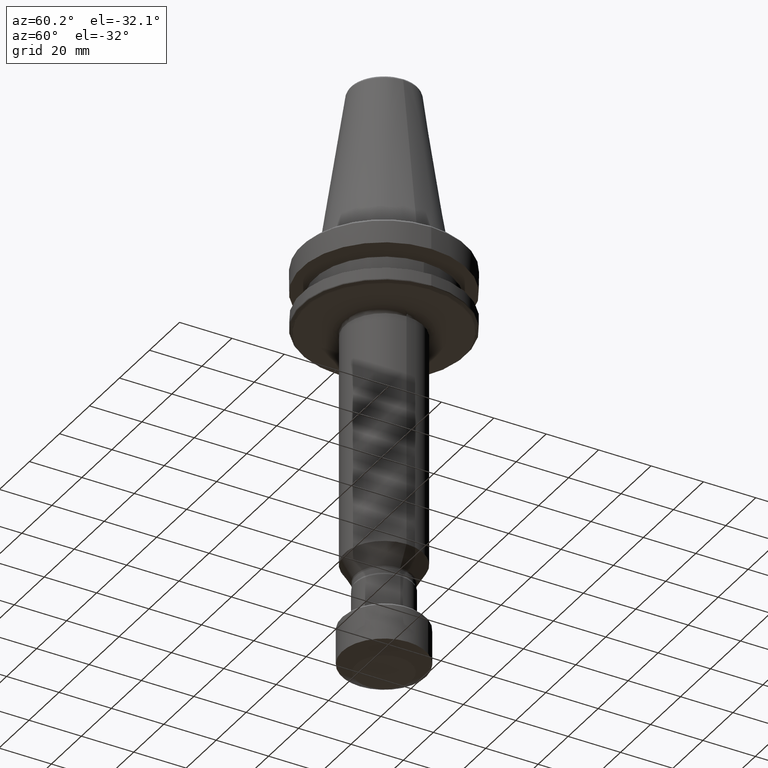
[diagram: clean part render]
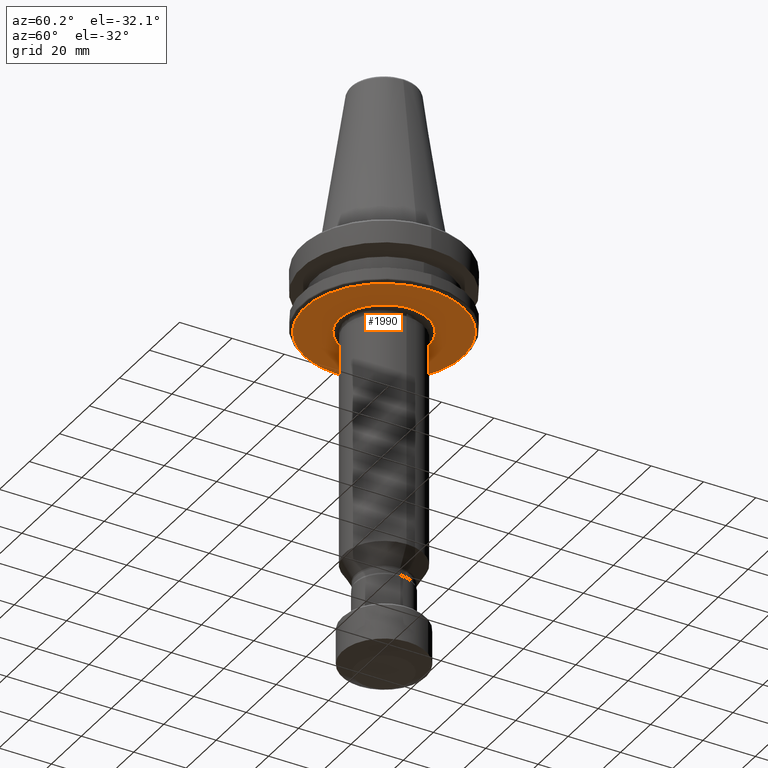
[diagram: same view with one face highlighted and labeled with its STEP entity id]
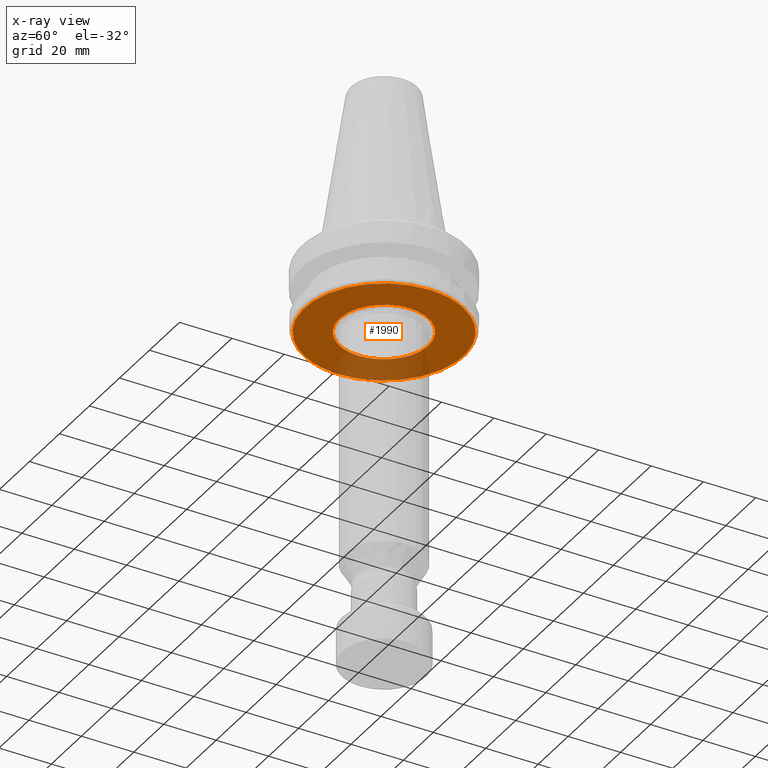
[diagram: x-ray of the same camera — body ghosted, the highlighted face saturated]
A machine part, auxiliary view. The second image highlights one B-rep face of the part: STEP entity #1990.
The next image is the same camera in x-ray: the body ghosted, the highlighted face saturated — about 21% of this face is hidden behind the body in this view.
In plain terms, the highlighted planar face has unit normal (0, 0, -1).
Its self-contained STEP definition (entity closure, byte-faithful):
#4 = CARTESIAN_POINT ( 'NONE',  ( 99.27228913076567100, 152.7608023083717800, 132.2292367380539700 ) ) ;
#5 = CARTESIAN_POINT ( 'NONE',  ( 148.4102251517349200, 138.9173612532962400, 132.2292367380540000 ) ) ;
#10 = CARTESIAN_POINT ( 'NONE',  ( 92.15545540724923500, 116.7178819037974800, 132.2292367380540000 ) ) ;
#12 = CARTESIAN_POINT ( 'NONE',  ( 97.48660466582556700, 151.0491255630750800, 132.2292367380540000 ) ) ;
#13 = CARTESIAN_POINT ( 'NONE',  ( 149.4560883097515500, 134.1369326093583300, 132.2292367380540600 ) ) ;
#20 = CARTESIAN_POINT ( 'NONE',  ( 108.9829309675543200, 158.5604884415682800, 132.2292367380540000 ) ) ;
#21 = CARTESIAN_POINT ( 'NONE',  ( 141.3065688117413900, 109.0768288742706700, 132.2292367380540300 ) ) ;
#26 = CARTESIAN_POINT ( 'NONE',  ( 98.74364538593167100, 152.2836065482275400, 132.2292367380540300 ) ) ;
#27 = CARTESIAN_POINT ( 'NONE',  ( 92.33459957713037600, 143.7756878340915100, 132.2292367380540300 ) ) ;
#28 = CARTESIAN_POINT ( 'NONE',  ( 136.2872808719769200, 131.9917359256250800, 132.2292367380540000 ) ) ;
#31 = CARTESIAN_POINT ( 'NONE',  ( 99.87679404403959900, 153.2894432195576300, 132.2292367380539700 ) ) ;
#32 = CARTESIAN_POINT ( 'NONE',  ( 97.28007574091286400, 109.3015088388138300, 132.2292367380540000 ) ) ;
#35 = CARTESIAN_POINT ( 'NONE',  ( 105.0550540420589700, 156.7930481662940600, 132.2292367380539700 ) ) ;
#43 = CARTESIAN_POINT ( 'NONE',  ( 135.7240578258437700, 134.7973032269915400, 132.2292367380540300 ) ) ;
#45 = CARTESIAN_POINT ( 'NONE',  ( 102.5058926056031100, 128.1342185117444500, 132.2292367380540300 ) ) ;
#57 = CARTESIAN_POINT ( 'NONE',  ( 133.5442692356277800, 139.4955566875439700, 132.2292367380540300 ) ) ;
#60 = CARTESIAN_POINT ( 'NONE',  ( 103.0691156517360300, 125.3286512103721200, 132.2292367380540300 ) ) ;
#71 = CARTESIAN_POINT ( 'NONE',  ( 130.6307482224434300, 142.8220502300725300, 132.2292367380540300 ) ) ;
#73 = CARTESIAN_POINT ( 'NONE',  ( 105.2489042419622500, 120.6303977497999800, 132.2292367380540300 ) ) ;
#84 = CARTESIAN_POINT ( 'NONE',  ( 127.6492379236616700, 144.9258685234298700, 132.2292367380540300 ) ) ;
#86 = CARTESIAN_POINT ( 'NONE',  ( 108.1624252551375300, 117.3039042072887200, 132.2292367380540000 ) ) ;
#96 = CARTESIAN_POINT ( 'NONE',  ( 123.9157496415570300, 146.4515320116571800, 132.2292367380540300 ) ) ;
#99 = CARTESIAN_POINT ( 'NONE',  ( 111.1439355539100400, 115.2000859139371000, 132.2292367380540000 ) ) ;
#111 = CARTESIAN_POINT ( 'NONE',  ( 117.6315980912481500, 146.9720339286593300, 132.2292367380540600 ) ) ;
#113 = CARTESIAN_POINT ( 'NONE',  ( 114.8774238360619500, 113.6744224256943500, 132.2292367380540300 ) ) ;
#123 = CARTESIAN_POINT ( 'NONE',  ( 113.3168886487218600, 145.9388811954713100, 132.2292367380540300 ) ) ;
#125 = AXIS2_PLACEMENT_3D ( 'NONE', #2894, #1113, #3173 ) ;
#126 = CARTESIAN_POINT ( 'NONE',  ( 121.1615753863241200, 113.1539205087008800, 132.2292367380540000 ) ) ;
#128 = CARTESIAN_POINT ( 'NONE',  ( 96.76645598423989700, 109.8561207969030300, 132.2292367380540600 ) ) ;
#133 = CARTESIAN_POINT ( 'NONE',  ( 89.06227217478189600, 130.0629772186810600, 132.2292367380540000 ) ) ;
#139 = CARTESIAN_POINT ( 'NONE',  ( 109.7844964500911300, 144.0847227893602000, 132.2292367380540300 ) ) ;
#141 = CARTESIAN_POINT ( 'NONE',  ( 125.4762848288537800, 114.1870732418889400, 132.2292367380540600 ) ) ;
#144 = EDGE_CURVE ( 'NONE', #2867, #1989, #2038, .T. ) ;
#153 = CARTESIAN_POINT ( 'NONE',  ( 106.1148407143447200, 140.6759721613208900, 132.2292367380540300 ) ) ;
#155 = CARTESIAN_POINT ( 'NONE',  ( 129.0086770274901100, 116.0412316480030200, 132.2292367380540300 ) ) ;
#166 = CARTESIAN_POINT ( 'NONE',  ( 104.1304953421102800, 137.5427307097567700, 132.2292367380540000 ) ) ;
#168 = CARTESIAN_POINT ( 'NONE',  ( 132.6783327632445800, 119.4499822760465500, 132.2292367380540000 ) ) ;
#176 = CARTESIAN_POINT ( 'NONE',  ( 93.69926924347224400, 113.9432652842013700, 132.2292367380540300 ) ) ;
#179 = CARTESIAN_POINT ( 'NONE',  ( 102.6602007532727000, 133.0587238726574000, 132.2292367380540300 ) ) ;
#181 = CARTESIAN_POINT ( 'NONE',  ( 134.6626781354699500, 122.5832237276062200, 132.2292367380540300 ) ) ;
#188 = CARTESIAN_POINT ( 'NONE',  ( 146.6697867404209600, 116.7835419639552000, 132.2292367380540000 ) ) ;
#193 = CARTESIAN_POINT ( 'NONE',  ( 97.44298372873429100, 109.1287396634430700, 132.2292367380540300 ) ) ;
#195 = CARTESIAN_POINT ( 'NONE',  ( 89.09582782754894500, 131.7458305232289300, 132.2292367380540300 ) ) ;
#200 = CARTESIAN_POINT ( 'NONE',  ( 136.1329727243086200, 127.0672305646856000, 132.2292367380539700 ) ) ;
#218 = CARTESIAN_POINT ( 'NONE',  ( 89.43198221848912500, 134.8458631339907800, 132.2292367380540000 ) ) ;
#237 = CARTESIAN_POINT ( 'NONE',  ( 122.8599359660358800, 160.1993470661508600, 132.2292367380540300 ) ) ;
#242 = CARTESIAN_POINT ( 'NONE',  ( 99.42410743952072500, 152.8943574446264500, 132.2292367380539700 ) ) ;
#253 = CARTESIAN_POINT ( 'NONE',  ( 130.0973199478702300, 158.4473203349739400, 132.2292367380540300 ) ) ;
#256 = CARTESIAN_POINT ( 'NONE',  ( 105.6541042559083400, 157.1125547441450300, 132.2292367380540000 ) ) ;
#257 = CARTESIAN_POINT ( 'NONE',  ( 140.0495280916312000, 107.8423478891130900, 132.2292367380540000 ) ) ;
#258 = CARTESIAN_POINT ( 'NONE',  ( 149.7309013027980900, 130.0629772186810600, 132.2292367380540000 ) ) ;
#267 = CARTESIAN_POINT ( 'NONE',  ( 136.2451147362143300, 155.2886696309670400, 132.2292367380539700 ) ) ;
#279 = CARTESIAN_POINT ( 'NONE',  ( 139.7513455592310800, 152.5607449857265900, 132.2292367380540300 ) ) ;
#282 = CARTESIAN_POINT ( 'NONE',  ( 101.3189082600086700, 154.4250206396187900, 132.2292367380540000 ) ) ;
#293 = CARTESIAN_POINT ( 'NONE',  ( 143.5860325691472200, 148.3671384962211400, 132.2292367380539400 ) ) ;
#304 = CARTESIAN_POINT ( 'NONE',  ( 97.07430634847179400, 150.6028758360506300, 132.2292367380540300 ) ) ;
#305 = CARTESIAN_POINT ( 'NONE',  ( 146.2964179651114900, 144.0867329195853900, 132.2292367380539700 ) ) ;
#316 = CARTESIAN_POINT ( 'NONE',  ( 148.4910515105223100, 138.6469149371511700, 132.2292367380539700 ) ) ;
#327 = CARTESIAN_POINT ( 'NONE',  ( 149.4610578936634500, 134.1000943485308000, 132.2292367380540800 ) ) ;
#339 = CARTESIAN_POINT ( 'NONE',  ( 92.65609796334959500, 144.3982566488209000, 132.2292367380540000 ) ) ;
#340 = CARTESIAN_POINT ( 'NONE',  ( 136.2569426183889300, 132.2376773013407400, 132.2292367380539700 ) ) ;
#343 = CARTESIAN_POINT ( 'NONE',  ( 149.3611912590915600, 125.2800913033760800, 132.2292367380540000 ) ) ;
#353 = CARTESIAN_POINT ( 'NONE',  ( 135.5816125926604900, 135.2857975605300300, 132.2292367380540300 ) ) ;
#355 = CARTESIAN_POINT ( 'NONE',  ( 102.5362308591910900, 127.8882771360234300, 132.2292367380540000 ) ) ;
#363 = CARTESIAN_POINT ( 'NONE',  ( 143.6834766259038600, 111.8883070455295700, 132.2292367380539400 ) ) ;
#368 = CARTESIAN_POINT ( 'NONE',  ( 133.1370961310873300, 140.0732987506819100, 132.2292367380540000 ) ) ;
#371 = CARTESIAN_POINT ( 'NONE',  ( 103.2115608849143300, 124.8401568768410900, 132.2292367380540000 ) ) ;
#378 = CARTESIAN_POINT ( 'NONE',  ( 97.21061247502440500, 109.3759217728005100, 132.2292367380540000 ) ) ;
#385 = CARTESIAN_POINT ( 'NONE',  ( 130.5895884593798500, 142.8581748988503600, 132.2292367380539700 ) ) ;
#387 = CARTESIAN_POINT ( 'NONE',  ( 105.6560773464957800, 120.0526556866745400, 132.2292367380540300 ) ) ;
#395 = CARTESIAN_POINT ( 'NONE',  ( 99.55750653054211300, 107.1155871895419300, 132.2292367380540600 ) ) ;
#400 = CARTESIAN_POINT ( 'NONE',  ( 127.4690082812391700, 145.0241815943576300, 132.2292367380540300 ) ) ;
#403 = CARTESIAN_POINT ( 'NONE',  ( 108.2035850182005700, 117.2677795385113300, 132.2292367380540300 ) ) ;
#404 = CARTESIAN_POINT ( 'NONE',  ( 109.8547309867283700, 158.8691039987712100, 132.2292367380540000 ) ) ;
#414 = CARTESIAN_POINT ( 'NONE',  ( 123.6663094950926500, 146.5182828353752900, 132.2292367380540300 ) ) ;
#416 = CARTESIAN_POINT ( 'NONE',  ( 111.3241651963382100, 115.1017728430060200, 132.2292367380539700 ) ) ;
#421 = CARTESIAN_POINT ( 'NONE',  ( 143.9208880658716500, 112.2092411219412800, 132.2292367380540000 ) ) ;
#428 = CARTESIAN_POINT ( 'NONE',  ( 116.9313475688232700, 146.8869586098733700, 132.2292367380540300 ) ) ;
#430 = CARTESIAN_POINT ( 'NONE',  ( 115.1268639824792400, 113.6076716019887000, 132.2292367380540000 ) ) ;
#431 = CARTESIAN_POINT ( 'NONE',  ( 102.1534345023281400, 105.1061033139740500, 132.2292367380540300 ) ) ;
#434 = CARTESIAN_POINT ( 'NONE',  ( 136.7269006883936100, 105.1665507050063300, 132.2292367380540000 ) ) ;
#440 = CARTESIAN_POINT ( 'NONE',  ( 112.4563601733868700, 145.5882531286054900, 132.2292367380540000 ) ) ;
#443 = CARTESIAN_POINT ( 'NONE',  ( 121.8618259087565700, 113.2389958274898000, 132.2292367380540000 ) ) ;
#444 = CARTESIAN_POINT ( 'NONE',  ( 148.5308513457951600, 121.6151743791190000, 132.2292367380539700 ) ) ;
#456 = CARTESIAN_POINT ( 'NONE',  ( 109.4563991386318000, 143.8576638298933100, 132.2292367380539700 ) ) ;
#458 = CARTESIAN_POINT ( 'NONE',  ( 126.3368133042237000, 114.5377013087699400, 132.2292367380540300 ) ) ;
#459 = ORIENTED_EDGE ( 'NONE', *, *, #1048, .T. ) ;
#460 = CARTESIAN_POINT ( 'NONE',  ( 99.82588234200665100, 106.8855459876657500, 132.2292367380540000 ) ) ;
#467 = CARTESIAN_POINT ( 'NONE',  ( 105.8752142786203900, 140.3670999611919400, 132.2292367380540300 ) ) ;
#470 = CARTESIAN_POINT ( 'NONE',  ( 129.3367743389330500, 116.2682906074576200, 132.2292367380540300 ) ) ;
#482 = CARTESIAN_POINT ( 'NONE',  ( 103.9044176169062000, 137.0790731263800200, 132.2292367380540300 ) ) ;
#484 = CARTESIAN_POINT ( 'NONE',  ( 132.9179591989621700, 119.7588544761716800, 132.2292367380540000 ) ) ;
#494 = CARTESIAN_POINT ( 'NONE',  ( 143.3530266826896600, 111.4476913858133900, 132.2292367380539700 ) ) ;
#495 = CARTESIAN_POINT ( 'NONE',  ( 94.12799122599530200, 146.8586728556189200, 132.2292367380540000 ) ) ;
#496 = CARTESIAN_POINT ( 'NONE',  ( 90.26897314743433800, 138.5336848238911800, 132.2292367380540000 ) ) ;
#497 = CARTESIAN_POINT ( 'NONE',  ( 102.5727419322580100, 132.5049518825462900, 132.2292367380540300 ) ) ;
#500 = CARTESIAN_POINT ( 'NONE',  ( 134.8887558606554100, 123.0468813109393000, 132.2292367380540000 ) ) ;
#507 = CARTESIAN_POINT ( 'NONE',  ( 89.62604672385762700, 135.9713845209397500, 132.2292367380540000 ) ) ;
#510 = CARTESIAN_POINT ( 'NONE',  ( 136.2204315453223300, 127.6210025548098200, 132.2292367380539700 ) ) ;
#523 = CARTESIAN_POINT ( 'NONE',  ( 148.5242003301456200, 121.5922696134710600, 132.2292367380540000 ) ) ;
#529 = CARTESIAN_POINT ( 'NONE',  ( 102.0662727891815500, 154.9594037323521700, 132.2292367380540000 ) ) ;
#537 = CARTESIAN_POINT ( 'NONE',  ( 149.4817243338930600, 126.1824903000135500, 132.2292367380540300 ) ) ;
#539 = CARTESIAN_POINT ( 'NONE',  ( 113.4542001562837600, 159.8211520922733700, 132.2292367380540000 ) ) ;
#552 = CARTESIAN_POINT ( 'NONE',  ( 111.3313564844455400, 100.8139696116031800, 132.2292367380540300 ) ) ;
#553 = CARTESIAN_POINT ( 'NONE',  ( 123.7956293196860300, 160.0831826751014300, 132.2292367380540000 ) ) ;
#562 = CARTESIAN_POINT ( 'NONE',  ( 130.3153083287336900, 158.3641745384729800, 132.2292367380540300 ) ) ;
#571 = CARTESIAN_POINT ( 'NONE',  ( 146.9859453931134700, 117.4502456703082200, 132.2292367380540300 ) ) ;
#572 = CARTESIAN_POINT ( 'NONE',  ( 136.5481195189653400, 155.0829060464656900, 132.2292367380540000 ) ) ;
#575 = CARTESIAN_POINT ( 'NONE',  ( 89.33708516782803600, 125.9890218280041700, 132.2292367380539400 ) ) ;
#586 = CARTESIAN_POINT ( 'NONE',  ( 141.0210656369440000, 151.3393091088671300, 132.2292367380540000 ) ) ;
#599 = CARTESIAN_POINT ( 'NONE',  ( 143.6455480117683700, 148.2882189225068700, 132.2292367380540300 ) ) ;
#609 = CARTESIAN_POINT ( 'NONE',  ( 146.5731925501449700, 143.5392013447173800, 132.2292367380540000 ) ) ;
#621 = CARTESIAN_POINT ( 'NONE',  ( 148.5099887121972700, 138.5824034556294700, 132.2292367380540300 ) ) ;
#623 = CARTESIAN_POINT ( 'NONE',  ( 149.4652468893442600, 126.0571803901534900, 132.2292367380540300 ) ) ;
#624 = FACE_OUTER_BOUND ( 'NONE', #1626, .T. ) ;
#628 = FACE_BOUND ( 'NONE', #3475, .T. ) ;
#632 = CARTESIAN_POINT ( 'NONE',  ( 149.7309013077400600, 131.4113396251185000, 132.2292367380540000 ) ) ;
#637 = CARTESIAN_POINT ( 'NONE',  ( 139.5208843468089100, 107.3651521289836200, 132.2292367380540000 ) ) ;
#647 = CARTESIAN_POINT ( 'NONE',  ( 107.9167406206652900, 158.1418642802181600, 132.2292367380540000 ) ) ;
#648 = CARTESIAN_POINT ( 'NONE',  ( 92.11800933814313900, 143.3313611945820300, 132.2292367380540600 ) ) ;
#649 = CARTESIAN_POINT ( 'NONE',  ( 136.2492662321905100, 132.2962061142214600, 132.2292367380540000 ) ) ;
#661 = CARTESIAN_POINT ( 'NONE',  ( 135.0307065815567000, 136.7471330372431700, 132.2292367380540000 ) ) ;
#663 = CARTESIAN_POINT ( 'NONE',  ( 102.5439072453895200, 127.8297483231412300, 132.2292367380539700 ) ) ;
#674 = CARTESIAN_POINT ( 'NONE',  ( 133.0369672561770100, 140.2089258889996600, 132.2292367380540000 ) ) ;
#677 = CARTESIAN_POINT ( 'NONE',  ( 103.7624668960164600, 123.3788214001306500, 132.2292367380540000 ) ) ;
#690 = CARTESIAN_POINT ( 'NONE',  ( 129.9696261863919900, 143.3816569854017200, 132.2292367380540000 ) ) ;
#691 = CARTESIAN_POINT ( 'NONE',  ( 105.7562062214039900, 119.9170285483607600, 132.2292367380540300 ) ) ;
#699 = CARTESIAN_POINT ( 'NONE',  ( 127.0982383869349100, 145.2221080044112700, 132.2292367380540000 ) ) ;
#701 = CARTESIAN_POINT ( 'NONE',  ( 108.8235472911760400, 116.7442974519706100, 132.2292367380540300 ) ) ;
#702 = CARTESIAN_POINT ( 'NONE',  ( 141.6979238999194900, 109.5003383409986400, 132.2292367380540300 ) ) ;
#705 = CARTESIAN_POINT ( 'NONE',  ( 107.0124262151567100, 102.3602186486318300, 132.2292367380539700 ) ) ;
#707 = CARTESIAN_POINT ( 'NONE',  ( 103.3420514721042300, 155.8122587138077500, 132.2292367380539700 ) ) ;
#711 = CARTESIAN_POINT ( 'NONE',  ( 122.7269650303767600, 146.7400701404071100, 132.2292367380540000 ) ) ;
#713 = CARTESIAN_POINT ( 'NONE',  ( 111.6949350906773800, 114.9038464329329700, 132.2292367380540300 ) ) ;
#714 = CARTESIAN_POINT ( 'NONE',  ( 124.2595290268061900, 100.1180941861464600, 132.2292367380540000 ) ) ;
#724 = CARTESIAN_POINT ( 'NONE',  ( 115.8100374509093500, 146.6819752441166100, 132.2292367380539700 ) ) ;
#726 = CARTESIAN_POINT ( 'NONE',  ( 116.0662084472601500, 113.3858842969419800, 132.2292367380539700 ) ) ;
#730 = CARTESIAN_POINT ( 'NONE',  ( 145.5307217267414600, 114.6616301560782500, 132.2292367380540000 ) ) ;
#733 = CARTESIAN_POINT ( 'NONE',  ( 111.6588225231946600, 145.2003325973627200, 132.2292367380539700 ) ) ;
#735 = CARTESIAN_POINT ( 'NONE',  ( 122.9831360266704900, 113.4439791932469300, 132.2292367380540000 ) ) ;
#740 = CARTESIAN_POINT ( 'NONE',  ( 141.8283567882303400, 109.6425560231486700, 132.2292367380540000 ) ) ;
#747 = CARTESIAN_POINT ( 'NONE',  ( 108.6414260888560400, 143.2300080931248900, 132.2292367380540300 ) ) ;
#749 = CARTESIAN_POINT ( 'NONE',  ( 127.1343509543987400, 114.9256218400051800, 132.2292367380540000 ) ) ;
#755 = CARTESIAN_POINT ( 'NONE',  ( 95.09216878554104800, 148.2141976918907700, 132.2292367380540600 ) ) ;
#761 = CARTESIAN_POINT ( 'NONE',  ( 105.8189848984267900, 140.2927890013546300, 132.2292367380540000 ) ) ;
#762 = CARTESIAN_POINT ( 'NONE',  ( 130.1517473887041400, 116.8959463442225400, 132.2292367380540300 ) ) ;
#772 = CARTESIAN_POINT ( 'NONE',  ( 103.3296690724279500, 135.6269495402353000, 132.2292367380540000 ) ) ;
#774 = CARTESIAN_POINT ( 'NONE',  ( 132.9741885791539200, 119.8331654360078600, 132.2292367380539700 ) ) ;
#777 = CARTESIAN_POINT ( 'NONE',  ( 97.16438239624946500, 109.4256123958326600, 132.2292367380540600 ) ) ;
#779 = CARTESIAN_POINT ( 'NONE',  ( 99.09495837368486100, 152.6028719437026700, 132.2292367380540000 ) ) ;
#786 = CARTESIAN_POINT ( 'NONE',  ( 102.5542067698689700, 132.3726046315228500, 132.2292367380540300 ) ) ;
#789 = CARTESIAN_POINT ( 'NONE',  ( 135.4635044051279400, 124.4990048970705200, 132.2292367380540300 ) ) ;
#796 = CARTESIAN_POINT ( 'NONE',  ( 90.72717449213941200, 120.1349469396462600, 132.2292367380540000 ) ) ;
#800 = CARTESIAN_POINT ( 'NONE',  ( 90.51653685186511200, 139.3825529304132000, 132.2292367380540600 ) ) ;
#804 = CARTESIAN_POINT ( 'NONE',  ( 136.2389667077111700, 127.7533498058375700, 132.2292367380540600 ) ) ;
#813 = CARTESIAN_POINT ( 'NONE',  ( 102.3965867438331800, 130.0629772186810600, 132.2292367380540000 ) ) ;
#832 = CARTESIAN_POINT ( 'NONE',  ( 114.9983407358680600, 160.0771611784009000, 132.2292367380540600 ) ) ;
#835 = CARTESIAN_POINT ( 'NONE',  ( 96.25395320082320400, 110.4400121872460500, 132.2292367380540000 ) ) ;
#841 = CARTESIAN_POINT ( 'NONE',  ( 90.92897372302208200, 140.6018982462084900, 132.2292367380540000 ) ) ;
#846 = CARTESIAN_POINT ( 'NONE',  ( 125.7965068880952700, 159.7174079168792400, 132.2292367380539700 ) ) ;
#855 = CARTESIAN_POINT ( 'NONE',  ( 143.7010046920377700, 111.9117567454705300, 132.2292367380540000 ) ) ;
#857 = CARTESIAN_POINT ( 'NONE',  ( 131.7807472623987300, 157.7657357887397000, 132.2292367380539700 ) ) ;
#862 = CARTESIAN_POINT ( 'NONE',  ( 107.8450470523899200, 102.0077207325839600, 132.2292367380540600 ) ) ;
#872 = CARTESIAN_POINT ( 'NONE',  ( 136.6397389752488300, 155.0198511233901400, 132.2292367380539700 ) ) ;
#885 = CARTESIAN_POINT ( 'NONE',  ( 141.5130977366882800, 150.8244455985268400, 132.2292367380540000 ) ) ;
#899 = CARTESIAN_POINT ( 'NONE',  ( 144.3887985416525100, 147.2672394815136000, 132.2292367380540000 ) ) ;
#906 = CARTESIAN_POINT ( 'NONE',  ( 116.7181994590314400, 99.84422096008859200, 132.2292367380539700 ) ) ;
#910 = CARTESIAN_POINT ( 'NONE',  ( 146.6377180703306600, 143.4080725335651300, 132.2292367380539700 ) ) ;
#923 = CARTESIAN_POINT ( 'NONE',  ( 148.7311690815772900, 137.8241500674778600, 132.2292367380540800 ) ) ;
#926 = CARTESIAN_POINT ( 'NONE',  ( 133.8007576741212300, 103.3666144837838800, 132.2292367380540300 ) ) ;
#928 = CARTESIAN_POINT ( 'NONE',  ( 92.13567826232609500, 116.7583285349633300, 132.2292367380540000 ) ) ;
#945 = CARTESIAN_POINT ( 'NONE',  ( 92.08865219479241700, 143.2708755999772200, 132.2292367380540300 ) ) ;
#947 = CARTESIAN_POINT ( 'NONE',  ( 136.1894088197701400, 132.7433355466945400, 132.2292367380540000 ) ) ;
#950 = CARTESIAN_POINT ( 'NONE',  ( 139.6982151038851600, 107.5230824936468700, 132.2292367380540300 ) ) ;
#954 = CARTESIAN_POINT ( 'NONE',  ( 94.40437493594367900, 112.8587149558153400, 132.2292367380540000 ) ) ;
#959 = CARTESIAN_POINT ( 'NONE',  ( 134.7689252171453500, 137.3222908921884800, 132.2292367380540300 ) ) ;
#962 = CARTESIAN_POINT ( 'NONE',  ( 102.6037646578052700, 127.3826188906913900, 132.2292367380540300 ) ) ;
#968 = CARTESIAN_POINT ( 'NONE',  ( 110.8871113237485300, 159.1821759684951300, 132.2292367380540000 ) ) ;
#969 = CARTESIAN_POINT ( 'NONE',  ( 112.0817210316459700, 100.6237272610639100, 132.2292367380540000 ) ) ;
#975 = CARTESIAN_POINT ( 'NONE',  ( 133.0077672210917400, 140.2480689525664300, 132.2292367380540000 ) ) ;
#977 = CARTESIAN_POINT ( 'NONE',  ( 104.0242482604325400, 122.8036635451773200, 132.2292367380540300 ) ) ;
#989 = CARTESIAN_POINT ( 'NONE',  ( 129.3032474750062900, 143.8785135427264700, 132.2292367380540000 ) ) ;
#990 = CARTESIAN_POINT ( 'NONE',  ( 105.7854062564880300, 119.8778854847958700, 132.2292367380540000 ) ) ;
#997 = CARTESIAN_POINT ( 'NONE',  ( 102.1846652149924600, 105.0845528551162900, 132.2292367380540000 ) ) ;
#1004 = CARTESIAN_POINT ( 'NONE',  ( 126.1034322007379700, 145.6856728538209900, 132.2292367380540300 ) ) ;
#1007 = CARTESIAN_POINT ( 'NONE',  ( 109.4899260025685000, 116.2474408946401400, 132.2292367380540300 ) ) ;
#1008 = CARTESIAN_POINT ( 'NONE',  ( 128.9384424908407100, 101.2568504385993300, 132.2292367380540000 ) ) ;
#1015 = CARTESIAN_POINT ( 'NONE',  ( 121.8616561597614400, 146.8842234682759900, 132.2292367380539700 ) ) ;
#1017 = CARTESIAN_POINT ( 'NONE',  ( 112.6897412768844500, 114.4402815835176300, 132.2292367380540000 ) ) ;
#1024 = CARTESIAN_POINT ( 'NONE',  ( 115.3824854754689500, 146.5825000713934700, 132.2292367380539700 ) ) ;
#1025 = CARTESIAN_POINT ( 'NONE',  ( 116.9315173178469500, 113.2417309690796000, 132.2292367380540300 ) ) ;
#1027 = CARTESIAN_POINT ( 'NONE',  ( 114.0698045644583100, 100.1884674205999100, 132.2292367380540000 ) ) ;
#1032 = CARTESIAN_POINT ( 'NONE',  ( 112.4624038230074300, 100.5311112783895200, 132.2292367380540000 ) ) ;
#1038 = CARTESIAN_POINT ( 'NONE',  ( 111.4713178517054600, 145.1026527820599200, 132.2292367380540000 ) ) ;
#1040 = CARTESIAN_POINT ( 'NONE',  ( 123.4106880021110000, 113.5434543659691500, 132.2292367380540300 ) ) ;
#1048 = EDGE_CURVE ( 'NONE', #1844, #1308, #2840, .T. ) ;
#1051 = CARTESIAN_POINT ( 'NONE',  ( 99.04182791840057100, 107.5652094515835100, 132.2292367380540600 ) ) ;
#1053 = CARTESIAN_POINT ( 'NONE',  ( 108.3233535509014900, 142.9620539861858200, 132.2292367380540000 ) ) ;
#1056 = CARTESIAN_POINT ( 'NONE',  ( 127.3218556258787300, 115.0233016553040200, 132.2292367380540600 ) ) ;
#1059 = CARTESIAN_POINT ( 'NONE',  ( 137.4742652175196700, 105.7009337977049600, 132.2292367380540000 ) ) ;
#1067 = CARTESIAN_POINT ( 'NONE',  ( 105.4728663393927200, 139.8313775180550600, 132.2292367380540800 ) ) ;
#1069 = CARTESIAN_POINT ( 'NONE',  ( 130.4698199266722400, 117.1639004511716400, 132.2292367380540000 ) ) ;
#1072 = CARTESIAN_POINT ( 'NONE',  ( 146.1370755141439000, 115.7276977883839400, 132.2292367380540000 ) ) ;
#1083 = CARTESIAN_POINT ( 'NONE',  ( 103.1367330231353900, 135.0251923512732600, 132.2292367380539700 ) ) ;
#1085 = CARTESIAN_POINT ( 'NONE',  ( 133.3203071381908800, 120.2945769193203200, 132.2292367380540300 ) ) ;
#1087 = CARTESIAN_POINT ( 'NONE',  ( 97.09524957766134900, 150.6256160963644400, 132.2292367380540000 ) ) ;
#1093 = CARTESIAN_POINT ( 'NONE',  ( 137.0736679639071300, 105.4108655431904400, 132.2292367380539700 ) ) ;
#1099 = CARTESIAN_POINT ( 'NONE',  ( 89.32792658823581200, 134.0687740472085400, 132.2292367380540300 ) ) ;
#1100 = CARTESIAN_POINT ( 'NONE',  ( 102.5485963297818300, 132.3313128018266400, 132.2292367380540000 ) ) ;
#1103 = CARTESIAN_POINT ( 'NONE',  ( 135.6564404544370200, 125.1007620860711900, 132.2292367380539700 ) ) ;
#1109 = CARTESIAN_POINT ( 'NONE',  ( 108.5515703451557500, 101.7334496383650400, 132.2292367380539700 ) ) ;
#1111 = CARTESIAN_POINT ( 'NONE',  ( 89.29279254753882400, 133.7972325182848600, 132.2292367380540000 ) ) ;
#1113 = DIRECTION ( 'NONE',  ( 0.0000000000000000000, 0.0000000000000000000, -1.000000000000000000 ) ) ;
#1115 = CARTESIAN_POINT ( 'NONE',  ( 136.2445771477981400, 127.7946416355348000, 132.2292367380540300 ) ) ;
#1123 = CARTESIAN_POINT ( 'NONE',  ( 89.19369849586688300, 132.9190109382701300, 132.2292367380539700 ) ) ;
#1132 = CARTESIAN_POINT ( 'NONE',  ( 148.6983764368127400, 122.2118241030936600, 132.2292367380540300 ) ) ;
#1137 = CARTESIAN_POINT ( 'NONE',  ( 89.32913516921553300, 134.0778404095406100, 132.2292367380540300 ) ) ;
#1144 = CARTESIAN_POINT ( 'NONE',  ( 115.4628354874452600, 160.1415578894920500, 132.2292367380540800 ) ) ;
#1151 = CARTESIAN_POINT ( 'NONE',  ( 93.72893509281522000, 146.2365957812724800, 132.2292367380540000 ) ) ;
#1155 = CARTESIAN_POINT ( 'NONE',  ( 126.5592452214183700, 159.5396314324542300, 132.2292367380540000 ) ) ;
#1165 = CARTESIAN_POINT ( 'NONE',  ( 133.2037278143928900, 157.0735979720101300, 132.2292367380540000 ) ) ;
#1168 = CARTESIAN_POINT ( 'NONE',  ( 139.3935418423628500, 107.2530337652286900, 132.2292367380540300 ) ) ;
#1178 = CARTESIAN_POINT ( 'NONE',  ( 137.8165494329789200, 154.1759830170264000, 132.2292367380540000 ) ) ;
#1180 = CARTESIAN_POINT ( 'NONE',  ( 118.7648048274040200, 99.72865119471464400, 132.2292367380540000 ) ) ;
#1190 = CARTESIAN_POINT ( 'NONE',  ( 141.6287910813368900, 150.7003420415230400, 132.2292367380540000 ) ) ;
#1196 = CARTESIAN_POINT ( 'NONE',  ( 95.26585334847084100, 111.6813122119784900, 132.2292367380540000 ) ) ;
#1201 = CARTESIAN_POINT ( 'NONE',  ( 145.0939042341148300, 146.1826891531462400, 132.2292367380540000 ) ) ;
#1204 = CARTESIAN_POINT ( 'NONE',  ( 108.9125431730056600, 101.5972522822503100, 132.2292367380540300 ) ) ;
#1209 = CARTESIAN_POINT ( 'NONE',  ( 94.87228541170112800, 147.9167133154158500, 132.2292367380540000 ) ) ;
#1213 = CARTESIAN_POINT ( 'NONE',  ( 146.6574952152536500, 143.3676259023993700, 132.2292367380540300 ) ) ;
#1217 = CARTESIAN_POINT ( 'NONE',  ( 111.4071215709211800, 159.3269670749371900, 132.2292367380540000 ) ) ;
#1224 = CARTESIAN_POINT ( 'NONE',  ( 146.7454233424618600, 116.9398346180572000, 132.2292367380540000 ) ) ;
#1229 = CARTESIAN_POINT ( 'NONE',  ( 96.51118548526375200, 149.9764729293646600, 132.2292367380540000 ) ) ;
#1230 = CARTESIAN_POINT ( 'NONE',  ( 149.2605523606283100, 135.4083299928547300, 132.2292367380540000 ) ) ;
#1235 = CARTESIAN_POINT ( 'NONE',  ( 102.2450539586138100, 105.0430483908973000, 132.2292367380540300 ) ) ;
#1243 = CARTESIAN_POINT ( 'NONE',  ( 136.3965867337468000, 130.0629772186810600, 132.2292367380540000 ) ) ;
#1253 = CARTESIAN_POINT ( 'NONE',  ( 91.96664463110452900, 143.0163402053319100, 132.2292367380540000 ) ) ;
#1254 = CARTESIAN_POINT ( 'NONE',  ( 135.9124164588417000, 134.1013531288110400, 132.2292367380539700 ) ) ;
#1256 = CARTESIAN_POINT ( 'NONE',  ( 102.4153920525270800, 129.1199358246140000, 132.2292367380539700 ) ) ;
#1262 = CARTESIAN_POINT ( 'NONE',  ( 149.1671267537234400, 124.1545699164306900, 132.2292367380539700 ) ) ;
#1269 = CARTESIAN_POINT ( 'NONE',  ( 134.7038164393320000, 137.4581724399029400, 132.2292367380540000 ) ) ;
#1271 = CARTESIAN_POINT ( 'NONE',  ( 102.8807570187321000, 126.0246013085822100, 132.2292367380540300 ) ) ;
#1278 = CARTESIAN_POINT ( 'NONE',  ( 92.21998092743476100, 116.5867530926463600, 132.2292367380539700 ) ) ;
#1286 = CARTESIAN_POINT ( 'NONE',  ( 132.0677398212159500, 141.4238673983509800, 132.2292367380539700 ) ) ;
#1288 = CARTESIAN_POINT ( 'NONE',  ( 104.0893570382473700, 122.6677819974602400, 132.2292367380540000 ) ) ;
#1300 = CARTESIAN_POINT ( 'NONE',  ( 129.1414017635128200, 143.9928046905107500, 132.2292367380540000 ) ) ;
#1302 = CARTESIAN_POINT ( 'NONE',  ( 106.7254336563781400, 118.7020870389991800, 132.2292367380540000 ) ) ;
#1303 = CARTESIAN_POINT ( 'NONE',  ( 95.68266642837915000, 111.1437049515371600, 132.2292367380540000 ) ) ;
#1308 = VERTEX_POINT ( 'NONE', #3013 ) ;
#1314 = CARTESIAN_POINT ( 'NONE',  ( 125.7125535582830600, 145.8463748041485000, 132.2292367380540300 ) ) ;
#1316 = CARTESIAN_POINT ( 'NONE',  ( 109.6517717140655700, 116.1331497468527800, 132.2292367380540800 ) ) ;
#1317 = CARTESIAN_POINT ( 'NONE',  ( 111.6308016937086100, 159.3865036466080200, 132.2292367380540000 ) ) ;
#1325 = CARTESIAN_POINT ( 'NONE',  ( 120.8108631940721700, 147.0188557134009100, 132.2292367380540000 ) ) ;
#1327 = CARTESIAN_POINT ( 'NONE',  ( 113.0806199193120800, 114.2795796332052900, 132.2292367380539700 ) ) ;
#1338 = CARTESIAN_POINT ( 'NONE',  ( 114.8767338419831100, 146.4547719741266600, 132.2292367380540300 ) ) ;
#1340 = CARTESIAN_POINT ( 'NONE',  ( 117.9823102835258100, 113.1070987239656900, 132.2292367380540000 ) ) ;
#1351 = CARTESIAN_POINT ( 'NONE',  ( 111.1068767665262000, 144.9084765601516300, 132.2292367380540300 ) ) ;
#1352 = CARTESIAN_POINT ( 'NONE',  ( 123.9164396355952400, 113.6711824632339500, 132.2292367380540000 ) ) ;
#1365 = CARTESIAN_POINT ( 'NONE',  ( 107.4292470092776600, 157.9397445656420300, 132.2292367380539700 ) ) ;
#1367 = CARTESIAN_POINT ( 'NONE',  ( 108.2483984511785600, 142.8972381823762100, 132.2292367380540300 ) ) ;
#1370 = CARTESIAN_POINT ( 'NONE',  ( 127.6862967110590100, 115.2174778772148600, 132.2292367380540000 ) ) ;
#1371 = CARTESIAN_POINT ( 'NONE',  ( 100.2052457651316500, 106.5682115604167300, 132.2292367380540000 ) ) ;
#1384 = CARTESIAN_POINT ( 'NONE',  ( 104.5487636388669300, 138.3498733990616100, 132.2292367380540000 ) ) ;
#1385 = CARTESIAN_POINT ( 'NONE',  ( 130.5447750263995800, 117.2287162549845600, 132.2292367380540300 ) ) ;
#1393 = CARTESIAN_POINT ( 'NONE',  ( 145.3808109524393300, 114.4107728467237500, 132.2292367380540000 ) ) ;
#1394 = CARTESIAN_POINT ( 'NONE',  ( 93.45689728684523300, 145.7888815931308100, 132.2292367380540300 ) ) ;
#1396 = CARTESIAN_POINT ( 'NONE',  ( 103.0935668268182800, 134.8808329855199000, 132.2292367380539700 ) ) ;
#1399 = CARTESIAN_POINT ( 'NONE',  ( 134.2444098387177600, 121.7760810383178000, 132.2292367380539700 ) ) ;
#1403 = ORIENTED_EDGE ( 'NONE', *, *, #1956, .T. ) ;
#1409 = CARTESIAN_POINT ( 'NONE',  ( 102.3965867427970400, 130.8187034070784900, 132.2292367380540300 ) ) ;
#1411 = CARTESIAN_POINT ( 'NONE',  ( 135.6996066507594800, 125.2451214518368900, 132.2292367380540000 ) ) ;
#1419 = CARTESIAN_POINT ( 'NONE',  ( 112.0044687937968500, 100.6430332453451800, 132.2292367380540300 ) ) ;
#1422 = CARTESIAN_POINT ( 'NONE',  ( 90.25236619782481300, 138.4764186182197800, 132.2292367380540300 ) ) ;
#1424 = CARTESIAN_POINT ( 'NONE',  ( 136.3965867347829700, 129.3072510303220500, 132.2292367380540000 ) ) ;
#1441 = CARTESIAN_POINT ( 'NONE',  ( 102.9755718515485800, 104.5546962382636700, 132.2292367380540000 ) ) ;
#1449 = CARTESIAN_POINT ( 'NONE',  ( 118.1330229160500400, 160.3972688776025300, 132.2292367380540300 ) ) ;
#1461 = CARTESIAN_POINT ( 'NONE',  ( 126.7887046837794000, 159.4829211920183000, 132.2292367380539400 ) ) ;
#1467 = CARTESIAN_POINT ( 'NONE',  ( 111.8537294298082400, 159.4446381569117400, 132.2292367380540000 ) ) ;
#1472 = CARTESIAN_POINT ( 'NONE',  ( 102.6061036203733300, 155.3334006598053600, 132.2292367380539700 ) ) ;
#1474 = CARTESIAN_POINT ( 'NONE',  ( 133.5382404669547900, 156.8993309436897100, 132.2292367380540300 ) ) ;
#1490 = CARTESIAN_POINT ( 'NONE',  ( 138.9672911356097700, 153.2404084496699900, 132.2292367380539700 ) ) ;
#1494 = CARTESIAN_POINT ( 'NONE',  ( 108.6958535297233200, 101.6786341023829000, 132.2292367380540300 ) ) ;
#1503 = CARTESIAN_POINT ( 'NONE',  ( 142.0267174933824200, 150.2698336404095600, 132.2292367380540000 ) ) ;
#1516 = CARTESIAN_POINT ( 'NONE',  ( 145.2560224382094100, 145.9205019754622000, 132.2292367380540300 ) ) ;
#1528 = CARTESIAN_POINT ( 'NONE',  ( 147.5549613885220300, 141.4022787065201500, 132.2292367380540000 ) ) ;
#1531 = CARTESIAN_POINT ( 'NONE',  ( 90.06200439599649600, 122.3018043698912000, 132.2292367380539700 ) ) ;
#1540 = CARTESIAN_POINT ( 'NONE',  ( 149.4165863819920300, 134.4203133255636000, 132.2292367380540000 ) ) ;
#1552 = CARTESIAN_POINT ( 'NONE',  ( 95.00016327203886100, 148.0905038570228100, 132.2292367380540000 ) ) ;
#1553 = CARTESIAN_POINT ( 'NONE',  ( 136.3965867347830600, 130.4406696461807100, 132.2292367380540600 ) ) ;
#1556 = CARTESIAN_POINT ( 'NONE',  ( 142.8711259765480600, 110.8382982599546100, 132.2292367380540600 ) ) ;
#1566 = CARTESIAN_POINT ( 'NONE',  ( 91.49957283665354200, 141.9901570488267500, 132.2292367380540000 ) ) ;
#1567 = CARTESIAN_POINT ( 'NONE',  ( 135.7681301313334100, 134.6431039082012500, 132.2292367380540000 ) ) ;
#1569 = CARTESIAN_POINT ( 'NONE',  ( 102.3965867438331800, 130.0629772186810600, 132.2292367380540000 ) ) ;
#1571 = CARTESIAN_POINT ( 'NONE',  ( 97.14025887026043900, 109.4516325958341300, 132.2292367380540000 ) ) ;
#1583 = CARTESIAN_POINT ( 'NONE',  ( 134.6848731425749000, 137.4972603704641200, 132.2292367380540000 ) ) ;
#1586 = CARTESIAN_POINT ( 'NONE',  ( 103.0250433462446200, 125.4828505291705500, 132.2292367380539700 ) ) ;
#1591 = CARTESIAN_POINT ( 'NONE',  ( 91.75275441741730700, 117.5437802542711000, 132.2292367380540300 ) ) ;
#1598 = CARTESIAN_POINT ( 'NONE',  ( 130.9629901835344600, 142.5232639310154600, 132.2292367380540000 ) ) ;
#1600 = CARTESIAN_POINT ( 'NONE',  ( 104.1083003350048700, 122.6286940668983600, 132.2292367380540000 ) ) ;
#1602 = CARTESIAN_POINT ( 'NONE',  ( 129.8102425100194100, 101.5654659957986500, 132.2292367380540000 ) ) ;
#1611 = CARTESIAN_POINT ( 'NONE',  ( 128.8063971036077400, 144.2250250972138300, 132.2292367380540000 ) ) ;
#1614 = CARTESIAN_POINT ( 'NONE',  ( 107.8301832940517100, 117.6026905063414300, 132.2292367380540000 ) ) ;
#1620 = CARTESIAN_POINT ( 'NONE',  ( 126.2559020812473400, 100.5077053307609600, 132.2292367380539700 ) ) ;
#1626 = EDGE_LOOP ( 'NONE', ( #1403, #2787 ) ) ;
#1627 = CARTESIAN_POINT ( 'NONE',  ( 125.2326975996602700, 146.0335692068256600, 132.2292367380540000 ) ) ;
#1629 = CARTESIAN_POINT ( 'NONE',  ( 109.9867763739613600, 115.9009293401546600, 132.2292367380539700 ) ) ;
#1635 = CARTESIAN_POINT ( 'NONE',  ( 99.50406481731609200, 107.1618985788130200, 132.2292367380540800 ) ) ;
#1641 = CARTESIAN_POINT ( 'NONE',  ( 119.0426030478220700, 147.0629886675847900, 132.2292367380540000 ) ) ;
#1643 = CARTESIAN_POINT ( 'NONE',  ( 113.5604758779659300, 114.0923852305238500, 132.2292367380539700 ) ) ;
#1645 = CARTESIAN_POINT ( 'NONE',  ( 102.0942713759632200, 154.9788723088303200, 132.2292367380540000 ) ) ;
#1647 = CARTESIAN_POINT ( 'NONE',  ( 144.6651822515682700, 113.2672815817316900, 132.2292367380540600 ) ) ;
#1653 = CARTESIAN_POINT ( 'NONE',  ( 113.8055957284380800, 146.1189289297014400, 132.2292367380540000 ) ) ;
#1654 = CARTESIAN_POINT ( 'NONE',  ( 119.7505704297490900, 113.0629657697750300, 132.2292367380539700 ) ) ;
#1664 = CARTESIAN_POINT ( 'NONE',  ( 110.1939817829537000, 144.3584157460011000, 132.2292367380540300 ) ) ;
#1666 = CARTESIAN_POINT ( 'NONE',  ( 124.9875777491397200, 114.0070255076586700, 132.2292367380540000 ) ) ;
#1673 = CARTESIAN_POINT ( 'NONE',  ( 149.5003809300411300, 126.3287219190772400, 132.2292367380540600 ) ) ;
#1676 = CARTESIAN_POINT ( 'NONE',  ( 107.7692125618173400, 142.4791115136432900, 132.2292367380540300 ) ) ;
#1679 = CARTESIAN_POINT ( 'NONE',  ( 128.5991916946331600, 115.7675386913667400, 132.2292367380540000 ) ) ;
#1692 = CARTESIAN_POINT ( 'NONE',  ( 104.2203826592516100, 137.7239805886105400, 132.2292367380540000 ) ) ;
#1694 = CARTESIAN_POINT ( 'NONE',  ( 131.0239609157748600, 117.6468429237257600, 132.2292367380540300 ) ) ;
#1699 = CARTESIAN_POINT ( 'NONE',  ( 97.03046241251836100, 150.5551244064202200, 132.2292367380540000 ) ) ;
#1703 = CARTESIAN_POINT ( 'NONE',  ( 92.17475500222850800, 116.6785109507342900, 132.2292367380539700 ) ) ;
#1709 = CARTESIAN_POINT ( 'NONE',  ( 103.0803277772213300, 134.8358021849736300, 132.2292367380540000 ) ) ;
#1712 = CARTESIAN_POINT ( 'NONE',  ( 134.5727908183298800, 122.4019738487570000, 132.2292367380540300 ) ) ;
#1714 = CARTESIAN_POINT ( 'NONE',  ( 95.20714090844285200, 111.7588159411289300, 132.2292367380540300 ) ) ;
#1718 = CARTESIAN_POINT ( 'NONE',  ( 136.8717656916906500, 105.2678677525488100, 132.2292367380539700 ) ) ;
#1726 = PLANE ( 'NONE',  #125 ) ;
#1728 = CARTESIAN_POINT ( 'NONE',  ( 135.7128457003586600, 125.2901522523889600, 132.2292367380540000 ) ) ;
#1736 = CARTESIAN_POINT ( 'NONE',  ( 93.48806991834602800, 114.2857715451345700, 132.2292367380540300 ) ) ;
#1737 = CARTESIAN_POINT ( 'NONE',  ( 93.36715501633983600, 145.6400499038322200, 132.2292367380540000 ) ) ;
#1746 = CARTESIAN_POINT ( 'NONE',  ( 89.34189695645008600, 125.9535722031792900, 132.2292367380540000 ) ) ;
#1753 = CARTESIAN_POINT ( 'NONE',  ( 104.8636339660378400, 156.6894543675157900, 132.2292367380540000 ) ) ;
#1760 = CARTESIAN_POINT ( 'NONE',  ( 134.1222947316122700, 103.5420050914104200, 132.2292367380540000 ) ) ;
#1770 = CARTESIAN_POINT ( 'NONE',  ( 95.40368132754265700, 111.5011728692387000, 132.2292367380540000 ) ) ;
#1771 = CARTESIAN_POINT ( 'NONE',  ( 120.9743344933209400, 160.3678037458040800, 132.2292367380540300 ) ) ;
#1785 = CARTESIAN_POINT ( 'NONE',  ( 149.5994749817131400, 127.2069434990919200, 132.2292367380540000 ) ) ;
#1787 = CARTESIAN_POINT ( 'NONE',  ( 128.3508243465262500, 159.0571421878262900, 132.2292367380540000 ) ) ;
#1801 = CARTESIAN_POINT ( 'NONE',  ( 134.1886223181702200, 156.5527927544708000, 132.2292367380540000 ) ) ;
#1804 = CARTESIAN_POINT ( 'NONE',  ( 109.4200064056820200, 101.4132517554924100, 132.2292367380540300 ) ) ;
#1813 = CARTESIAN_POINT ( 'NONE',  ( 139.2356669470493700, 153.0103672478119600, 132.2292367380540000 ) ) ;
#1817 = CARTESIAN_POINT ( 'NONE',  ( 145.7370045712521300, 115.0147548150764000, 132.2292367380540000 ) ) ;
#1826 = CARTESIAN_POINT ( 'NONE',  ( 143.1105070492564300, 148.9822494857599500, 132.2292367380540600 ) ) ;
#1838 = CARTESIAN_POINT ( 'NONE',  ( 145.3051035592339100, 145.8401828922272900, 132.2292367380540300 ) ) ;
#1844 = VERTEX_POINT ( 'NONE', #813 ) ;
#1850 = CARTESIAN_POINT ( 'NONE',  ( 148.2992023373990100, 139.2766902716789400, 132.2292367380540000 ) ) ;
#1854 = CARTESIAN_POINT ( 'NONE',  ( 92.88023904929940500, 115.3172209477326900, 132.2292367380540000 ) ) ;
#1861 = CARTESIAN_POINT ( 'NONE',  ( 149.4512765211292700, 134.1723822341836300, 132.2292367380540300 ) ) ;
#1871 = CARTESIAN_POINT ( 'NONE',  ( 93.41236252512882700, 145.7151815906167400, 132.2292367380540300 ) ) ;
#1873 = CARTESIAN_POINT ( 'NONE',  ( 136.3229326050068800, 131.6635104764491200, 132.2292367380540300 ) ) ;
#1876 = CARTESIAN_POINT ( 'NONE',  ( 149.4680213480219800, 126.0780635477609600, 132.2292367380540000 ) ) ;
#1885 = CARTESIAN_POINT ( 'NONE',  ( 135.7314827387902800, 134.7716197235566800, 132.2292367380540000 ) ) ;
#1889 = CARTESIAN_POINT ( 'NONE',  ( 102.4702408725731600, 128.4624439609255800, 132.2292367380539700 ) ) ;
#1890 = CARTESIAN_POINT ( 'NONE',  ( 147.2936006409089800, 118.1357973884717400, 132.2292367380540000 ) ) ;
#1901 = CARTESIAN_POINT ( 'NONE',  ( 134.0536715170883300, 138.7049183839691900, 132.2292367380540000 ) ) ;
#1903 = CARTESIAN_POINT ( 'NONE',  ( 103.0616907387891400, 125.3543347138083800, 132.2292367380539700 ) ) ;
#1904 = CARTESIAN_POINT ( 'NONE',  ( 127.1623717838684700, 100.7394507907562100, 132.2292367380540000 ) ) ;
#1911 = CARTESIAN_POINT ( 'NONE',  ( 130.5262087589695500, 101.8440516347818600, 132.2292367380540300 ) ) ;
#1918 = CARTESIAN_POINT ( 'NONE',  ( 130.6726900876031200, 142.7850820149594100, 132.2292367380540300 ) ) ;
#1920 = CARTESIAN_POINT ( 'NONE',  ( 104.7395019605051400, 121.4210360533687500, 132.2292367380540300 ) ) ;
#1925 = CARTESIAN_POINT ( 'NONE',  ( 133.1390692216299700, 103.0133996931937000, 132.2292367380539700 ) ) ;
#1931 = CARTESIAN_POINT ( 'NONE',  ( 127.8996911946470900, 144.7852291169921800, 132.2292367380540000 ) ) ;
#1933 = CARTESIAN_POINT ( 'NONE',  ( 108.1204833899786500, 117.3408724224013000, 132.2292367380540300 ) ) ;
#1944 = CARTESIAN_POINT ( 'NONE',  ( 124.1655775515721400, 146.3819687057718400, 132.2292367380539400 ) ) ;
#1946 = CARTESIAN_POINT ( 'NONE',  ( 110.8934822829187000, 115.3407253203782500, 132.2292367380540000 ) ) ;
#1956 = EDGE_CURVE ( 'NONE', #1989, #2867, #3252, .T. ) ;
#1958 = CARTESIAN_POINT ( 'NONE',  ( 117.9837891250168800, 147.0051135848189300, 132.2292367380540600 ) ) ;
#1960 = CARTESIAN_POINT ( 'NONE',  ( 114.6275959260685100, 113.7439857315737700, 132.2292367380540000 ) ) ;
#1966 = EDGE_CURVE ( 'NONE', #1308, #1844, #2179, .T. ) ;
#1971 = CARTESIAN_POINT ( 'NONE',  ( 113.3996521868271000, 145.9703398861999800, 132.2292367380540000 ) ) ;
#1973 = CARTESIAN_POINT ( 'NONE',  ( 120.8093843525509400, 113.1208408525401000, 132.2292367380539700 ) ) ;
#1982 = CARTESIAN_POINT ( 'NONE',  ( 109.8523501512221300, 144.1309969453444900, 132.2292367380540600 ) ) ;
#1986 = CARTESIAN_POINT ( 'NONE',  ( 125.3935212907521500, 114.1556145511613800, 132.2292367380540600 ) ) ;
#1988 = CARTESIAN_POINT ( 'NONE',  ( 108.1267328882135200, 158.2261932314443100, 132.2292367380540300 ) ) ;
#1989 = VERTEX_POINT ( 'NONE', #2620 ) ;
#1990 = ADVANCED_FACE ( 'NONE', ( #628, #624 ), #1726, .T. ) ;
#2000 = CARTESIAN_POINT ( 'NONE',  ( 106.4430782222936600, 141.0796443494880600, 132.2292367380540000 ) ) ;
#2002 = CARTESIAN_POINT ( 'NONE',  ( 128.9408233263602600, 115.9949574920196700, 132.2292367380540000 ) ) ;
#2005 = CARTESIAN_POINT ( 'NONE',  ( 132.3289603061047900, 102.6118579476913500, 132.2292367380540300 ) ) ;
#2012 = CARTESIAN_POINT ( 'NONE',  ( 89.06227216983990000, 130.7369877552025100, 132.2292367380540300 ) ) ;
#2014 = CARTESIAN_POINT ( 'NONE',  ( 104.1453666423395400, 137.5730067023666500, 132.2292367380540000 ) ) ;
#2016 = CARTESIAN_POINT ( 'NONE',  ( 132.3500952553022500, 119.0463100878831400, 132.2292367380540000 ) ) ;
#2024 = CARTESIAN_POINT ( 'NONE',  ( 102.8008941156508300, 133.7918586964073900, 132.2292367380540300 ) ) ;
#2026 = CARTESIAN_POINT ( 'NONE',  ( 134.6478068352408600, 122.5529477349971300, 132.2292367380540000 ) ) ;
#2035 = CARTESIAN_POINT ( 'NONE',  ( 90.09479704076780100, 137.9141303342720400, 132.2292367380540000 ) ) ;
#2038 = B_SPLINE_CURVE_WITH_KNOTS ( 'NONE', 3,
 ( #3387, #2934, #2598, #1785, #2157, #1673, #537, #3784, #1876, #623, #2808, #343, #1262, #2909, #1132, #3672, #2077, #3235, #444, #523, #2069, #2838, #3522, #1890, #571, #2455, #1224, #2576, #3329, #3524, #188, #2292, #1072, #1817, #730, #3144, #1393, #3010, #2949, #3097, #1647, #2315, #421, #3169, #2056, #855, #363, #494, #1556, #3131, #2869, #740, #2391, #3737, #702, #21, #2285, #257, #950, #637, #2665, #1168, #3624, #2715, #2530, #1059, #1093, #1718, #2774, #434, #3092, #3579, #2903, #2973, #1760, #3081, #926, #3684, #1925, #2005, #2842, #3643, #3440, #1911, #2913, #1602, #1008, #3714, #3349, #1904, #2444, #2726, #1620, #2418, #714, #2614, #2604, #3708, #3271, #3314, #1180, #2491, #906, #2161, #3533, #2655, #3398, #1027, #2359, #1032, #3393, #969, #1419, #552, #3651, #1804, #1204, #1494, #1109, #2333, #862, #705, #3103, #2985, #3044, #2889, #3200, #2852, #3154, #1441, #3676, #3723, #1235, #997, #431, #3189, #2922, #1371, #460, #2260, #395, #1635, #2960, #1051, #3221, #2767, #193, #32, #378, #777, #1571, #128, #835, #1303, #1770, #1196, #1714, #3663, #2800, #3139, #954, #2679, #176, #2796, #3406, #2989, #1736, #3264, #1854, #2148, #2832, #1278, #1703, #10, #2940, #928, #1591, #2609, #796, #3449, #3274, #3503, #2420, #3654, #3488, #2551, #1531, #3018, #2892, #2743, #2209, #2628, #1746, #575, #3776, #2172, #2361, #2234, #133 ),
 .UNSPECIFIED., .F., .F.,
 ( 4, 1, 1, 1, 1, 1, 1, 2, 2, 1, 1, 1, 1, 1, 1, 2, 2, 1, 1, 1, 1, 1, 1, 2, 2, 1, 1, 1, 1, 2, 2, 1, 1, 1, 1, 2, 2, 1, 1, 1, 1, 2, 2, 1, 1, 1, 1, 2, 2, 1, 1, 1, 1, 2, 2, 1, 1, 1, 2, 2, 1, 1, 1, 2, 2, 1, 1, 1, 2, 2, 1, 1, 2, 2, 2, 1, 1, 2, 2, 1, 1, 1, 2, 2, 1, 1, 1, 2, 2, 1, 1, 1, 2, 2, 1, 1, 1, 1, 2, 2, 1, 1, 1, 1, 2, 2, 1, 1, 1, 1, 2, 2, 1, 1, 1, 1, 2, 2, 1, 1, 1, 1, 2, 2, 1, 1, 1, 1, 1, 2, 2, 1, 1, 1, 1, 1, 1, 2, 2, 1, 1, 1, 1, 1, 1, 2, 2, 4 ),
 ( 0.0000000000000000000, 0.03124999999997575600, 0.04687499999996423000, 0.05468749999995910900, 0.05859374999995655600, 0.06054687499995527200, 0.06152343749995455000, 0.06201171874995482800, 0.06249999999995510500, 0.09374999999997517300, 0.1093749999999850800, 0.1171874999999901900, 0.1210937499999928800, 0.1230468749999939600, 0.1240234374999946700, 0.1245117187499952800, 0.1249999999999958900, 0.1562500000000299200, 0.1718750000000471300, 0.1796875000000557100, 0.1835937500000600400, 0.1855468750000619800, 0.1865234375000629200, 0.1870117187500632000, 0.1875000000000634500, 0.2031250000000638900, 0.2109375000000639200, 0.2148437500000637300, 0.2167968750000634200, 0.2177734375000630300, 0.2187500000000626200, 0.2343750000000522400, 0.2421875000000470200, 0.2460937500000444900, 0.2480468750000430800, 0.2490234375000423300, 0.2500000000000416300, 0.2656250000000274800, 0.2734375000000204800, 0.2773437500000170400, 0.2792968750000156000, 0.2802734375000149900, 0.2812500000000143800, 0.2968750000000068300, 0.3046875000000031600, 0.3085937500000011700, 0.3105468749999998900, 0.3115234374999995600, 0.3124999999999992200, 0.3281249999999929500, 0.3359374999999896200, 0.3398437499999882300, 0.3417968749999879000, 0.3427734374999875700, 0.3437499999999872900, 0.3593749999999858400, 0.3671874999999851800, 0.3710937499999849600, 0.3730468749999847900, 0.3749999999999846800, 0.3906249999999855700, 0.3984374999999856200, 0.4023437499999856200, 0.4042968749999853500, 0.4062499999999850100, 0.4218749999999826300, 0.4296874999999810700, 0.4335937499999799600, 0.4355468749999794100, 0.4374999999999787900, 0.4531249999999716900, 0.4609374999999680800, 0.4648437499999662500, 0.4687499999999644700, 0.4999999999999492600, 0.5156249999999413800, 0.5234374999999371600, 0.5273437499999352700, 0.5312499999999333900, 0.5468749999999260600, 0.5546874999999227300, 0.5585937499999210600, 0.5605468749999201700, 0.5624999999999192900, 0.5781249999999139600, 0.5859374999999110700, 0.5898437499999096300, 0.5917968749999091800, 0.5937499999999086300, 0.6093749999999037400, 0.6171874999999010800, 0.6210937499998999700, 0.6230468749998994100, 0.6249999999998987500, 0.6406249999998942000, 0.6484374999998919800, 0.6523437499998909800, 0.6542968749998906400, 0.6552734374998903100, 0.6562499999998899800, 0.6718749999998848700, 0.6796874999998819800, 0.6835937499998806500, 0.6855468749998798700, 0.6865234374998797600, 0.6874999999998795400, 0.7031249999998736600, 0.7109374999998706600, 0.7148437499998692200, 0.7167968749998687700, 0.7177734374998685500, 0.7187499999998683300, 0.7343749999998643300, 0.7421874999998622200, 0.7460937499998611100, 0.7480468749998606700, 0.7490234374998603300, 0.7499999999998600000, 0.7656249999998574500, 0.7734374999998562300, 0.7773437499998557800, 0.7792968749998553400, 0.7802734374998551200, 0.7812499999998550000, 0.7968749999998547800, 0.8046874999998550000, 0.8085937499998552300, 0.8105468749998553400, 0.8115234374998556700, 0.8120117187498562300, 0.8124999999998566700, 0.8437499999998722100, 0.8593749999998797600, 0.8671874999998834300, 0.8710937499998853100, 0.8730468749998860900, 0.8740234374998863100, 0.8745117187498864200, 0.8749999999998864200, 0.9062499999999121800, 0.9218749999999249500, 0.9296874999999321700, 0.9335937499999357200, 0.9355468749999374900, 0.9365234374999379400, 0.9370117187499380500, 0.9374999999999382700, 1.000000000000000000 ),
 .UNSPECIFIED. ) ;
#2039 = CARTESIAN_POINT ( 'NONE',  ( 135.9922793619308800, 126.3340957409293800, 132.2292367380539700 ) ) ;
#2056 = CARTESIAN_POINT ( 'NONE',  ( 143.7378537810627100, 111.9612030606207000, 132.2292367380540000 ) ) ;
#2061 = CARTESIAN_POINT ( 'NONE',  ( 89.32100682613989300, 134.0165650921369400, 132.2292367380540300 ) ) ;
#2069 = CARTESIAN_POINT ( 'NONE',  ( 148.5212926640333500, 121.5822748836324100, 132.2292367380540000 ) ) ;
#2072 = CARTESIAN_POINT ( 'NONE',  ( 89.25731443027355300, 133.5046504422100800, 132.2292367380540000 ) ) ;
#2077 = CARTESIAN_POINT ( 'NONE',  ( 148.5638936657300600, 121.7297425533956000, 132.2292367380540000 ) ) ;
#2078 = CARTESIAN_POINT ( 'NONE',  ( 122.5460365382272400, 160.2337774645670500, 132.2292367380540300 ) ) ;
#2089 = CARTESIAN_POINT ( 'NONE',  ( 129.8806303045968500, 158.5287021551030500, 132.2292367380540000 ) ) ;
#2101 = CARTESIAN_POINT ( 'NONE',  ( 135.8176016260267700, 155.5712581991034000, 132.2292367380539700 ) ) ;
#2114 = CARTESIAN_POINT ( 'NONE',  ( 139.3168806552035600, 152.9399010842409200, 132.2292367380539700 ) ) ;
#2128 = CARTESIAN_POINT ( 'NONE',  ( 143.5273201291264800, 148.4446422253632500, 132.2292367380540800 ) ) ;
#2139 = CARTESIAN_POINT ( 'NONE',  ( 145.9129344282797000, 144.8087334896368100, 132.2292367380540000 ) ) ;
#2143 = CARTESIAN_POINT ( 'NONE',  ( 94.61981154478580400, 147.5669469164653800, 132.2292367380540000 ) ) ;
#2148 = CARTESIAN_POINT ( 'NONE',  ( 92.49675551246788500, 116.0392215177822800, 132.2292367380540000 ) ) ;
#2153 = CARTESIAN_POINT ( 'NONE',  ( 148.4643418434945400, 138.7371541427574500, 132.2292367380539700 ) ) ;
#2157 = CARTESIAN_POINT ( 'NONE',  ( 149.5358590473064500, 126.6213039951519800, 132.2292367380540000 ) ) ;
#2161 = CARTESIAN_POINT ( 'NONE',  ( 116.2471369393392600, 99.89217697279339300, 132.2292367380540300 ) ) ;
#2164 = CARTESIAN_POINT ( 'NONE',  ( 149.4592824597340800, 134.1132965835238600, 132.2292367380540000 ) ) ;
#2172 = CARTESIAN_POINT ( 'NONE',  ( 89.33211558391657500, 126.0258600888308300, 132.2292367380540300 ) ) ;
#2177 = CARTESIAN_POINT ( 'NONE',  ( 92.12338673716062900, 143.3424124734097500, 132.2292367380540600 ) ) ;
#2178 = CARTESIAN_POINT ( 'NONE',  ( 136.2673981747101700, 132.1557185295465900, 132.2292367380539700 ) ) ;
#2179 = B_SPLINE_CURVE_WITH_KNOTS ( 'NONE', 3,
 ( #1243, #1553, #3551, #1873, #28, #2178, #340, #2480, #649, #2750, #947, #3028, #1254, #3296, #1567, #3564, #1885, #43, #2193, #353, #2496, #661, #2764, #959, #3041, #1269, #3311, #1583, #3575, #1901, #57, #2206, #368, #2506, #674, #2782, #975, #3053, #1286, #3323, #1598, #3588, #1918, #71, #2219, #385, #2522, #690, #2794, #989, #3065, #1300, #3335, #1611, #3603, #1931, #84, #2230, #400, #2536, #699, #2805, #1004, #3075, #1314, #3346, #1627, #3613, #1944, #96, #2242, #414, #2546, #711, #2814, #1015, #3087, #1325, #3358, #1641, #3622, #1958, #111, #2255, #428, #2557, #724, #2826, #1024, #3101, #1338, #3370, #1653, #3633, #1971, #123, #2268, #440, #2567, #733, #2835, #1038, #3113, #1351, #3378, #1664, #3648, #1982, #139, #2280, #456, #2578, #747, #2847, #1053, #3123, #1367, #3390, #1676, #3657, #2000, #153, #2296, #467, #2592, #761, #2859, #1067, #3133, #1384, #3401, #1692, #3667, #2014, #166, #2308, #482, #2601, #772, #2873, #1083, #3147, #1396, #3411, #1709, #3679, #2024, #179, #2325, #497, #2610, #786, #2885, #1100, #3163, #1409, #3423 ),
 .UNSPECIFIED., .F., .F.,
 ( 4, 1, 1, 1, 1, 1, 2, 2, 1, 1, 1, 1, 1, 2, 2, 1, 1, 1, 1, 1, 2, 2, 1, 1, 1, 1, 1, 2, 2, 1, 1, 1, 1, 1, 2, 2, 1, 1, 1, 2, 2, 1, 1, 1, 2, 2, 1, 1, 2, 2, 1, 1, 2, 2, 1, 2, 2, 2, 1, 2, 2, 1, 1, 2, 2, 1, 1, 2, 2, 1, 1, 1, 2, 2, 1, 1, 1, 2, 2, 1, 1, 1, 1, 2, 2, 1, 1, 1, 1, 1, 2, 2, 1, 1, 1, 1, 1, 2, 2, 1, 1, 1, 1, 1, 2, 2, 1, 1, 1, 1, 1, 2, 2, 4 ),
 ( 0.0000000000000000000, 0.03125000000000887500, 0.04687500000001446800, 0.05468750000001725700, 0.05859375000001751400, 0.06054687500001878400, 0.06152343750001926900, 0.06250000000001974800, 0.09375000000004198000, 0.1093750000000518800, 0.1171875000000565800, 0.1210937500000599100, 0.1230468750000625500, 0.1240234375000645600, 0.1250000000000665900, 0.1562500000000939800, 0.1718750000001073600, 0.1796875000001144100, 0.1835937500001171300, 0.1855468750001180400, 0.1865234375001197100, 0.1875000000001213800, 0.2187500000001600900, 0.2343750000001787700, 0.2421875000001881300, 0.2460937500001923200, 0.2480468750001945900, 0.2490234375001950900, 0.2500000000001955700, 0.2812500000001894600, 0.2968750000001864600, 0.3046875000001854600, 0.3085937500001854600, 0.3105468750001855200, 0.3115234375001850200, 0.3125000000001845200, 0.3281250000001698100, 0.3359375000001634200, 0.3398437500001600900, 0.3417968750001582600, 0.3437500000001564300, 0.3593750000001493800, 0.3671875000001449400, 0.3710937500001418300, 0.3730468750001411600, 0.3750000000001405000, 0.3906250000001340600, 0.3984375000001311200, 0.4023437500001292900, 0.4062500000001274500, 0.4218750000001222900, 0.4296875000001201800, 0.4335937500001191300, 0.4375000000001180700, 0.4531250000001135800, 0.4609375000001113600, 0.4687500000001091300, 0.5000000000000981400, 0.5156250000000927000, 0.5234375000000899300, 0.5312500000000871500, 0.5468750000000814900, 0.5546875000000786000, 0.5585937500000771600, 0.5625000000000757200, 0.5781250000000698300, 0.5859375000000673900, 0.5898437500000658400, 0.5937500000000642800, 0.6093750000000582900, 0.6171875000000549600, 0.6210937500000532900, 0.6230468750000525100, 0.6250000000000517400, 0.6406250000000438500, 0.6484375000000399700, 0.6523437500000379700, 0.6542968750000367500, 0.6562500000000355300, 0.6718750000000247600, 0.6796875000000195400, 0.6835937500000168800, 0.6855468750000155400, 0.6865234375000145400, 0.6875000000000136600, 0.7187499999999934500, 0.7343749999999836800, 0.7421874999999793500, 0.7460937499999771300, 0.7480468749999765700, 0.7490234374999764600, 0.7499999999999763500, 0.7812499999999813500, 0.7968749999999839000, 0.8046874999999844600, 0.8085937499999846800, 0.8105468749999855700, 0.8115234374999860100, 0.8124999999999863400, 0.8437499999999802400, 0.8593749999999773500, 0.8671874999999751300, 0.8710937499999750200, 0.8730468749999750200, 0.8740234374999751300, 0.8749999999999751300, 0.9062499999999834600, 0.9218749999999866800, 0.9296874999999883400, 0.9335937499999882300, 0.9355468749999881200, 0.9365234374999881200, 0.9374999999999880100, 1.000000000000000000 ),
 .UNSPECIFIED. ) ;
#2193 = CARTESIAN_POINT ( 'NONE',  ( 135.7208046768896300, 134.8085140819856300, 132.2292367380540600 ) ) ;
#2196 = CARTESIAN_POINT ( 'NONE',  ( 102.5257753028698600, 127.9702359078194400, 132.2292367380540000 ) ) ;
#2206 = CARTESIAN_POINT ( 'NONE',  ( 133.2752130129289600, 139.8821691738781100, 132.2292367380540000 ) ) ;
#2208 = CARTESIAN_POINT ( 'NONE',  ( 103.0723688006905700, 125.3174403553762300, 132.2292367380540000 ) ) ;
#2209 = CARTESIAN_POINT ( 'NONE',  ( 89.37658709558545000, 125.7056411118013800, 132.2292367380540300 ) ) ;
#2219 = CARTESIAN_POINT ( 'NONE',  ( 130.6027421768242500, 142.8466543384043900, 132.2292367380540000 ) ) ;
#2222 = CARTESIAN_POINT ( 'NONE',  ( 105.5179604646569500, 120.2437852634734000, 132.2292367380540300 ) ) ;
#2230 = CARTESIAN_POINT ( 'NONE',  ( 127.5411943345983700, 144.9850076823128100, 132.2292367380540000 ) ) ;
#2231 = CARTESIAN_POINT ( 'NONE',  ( 108.1904313007562000, 117.2793000989572600, 132.2292367380540300 ) ) ;
#2234 = CARTESIAN_POINT ( 'NONE',  ( 89.06227216983994300, 128.7146148123120200, 132.2292367380540800 ) ) ;
#2242 = CARTESIAN_POINT ( 'NONE',  ( 123.7487852332276200, 146.4966553220666600, 132.2292367380540300 ) ) ;
#2244 = CARTESIAN_POINT ( 'NONE',  ( 111.2519791429766400, 115.1409467550521600, 132.2292367380540000 ) ) ;
#2255 = CARTESIAN_POINT ( 'NONE',  ( 117.4541090482571800, 146.9525429380987300, 132.2292367380540300 ) ) ;
#2257 = CARTESIAN_POINT ( 'NONE',  ( 115.0443882443740800, 113.6292991152896100, 132.2292367380540000 ) ) ;
#2259 = CARTESIAN_POINT ( 'NONE',  ( 100.5305429160486600, 153.8285934376525000, 132.2292367380540300 ) ) ;
#2260 = CARTESIAN_POINT ( 'NONE',  ( 99.63778205960700500, 107.0462667905848700, 132.2292367380540000 ) ) ;
#2268 = CARTESIAN_POINT ( 'NONE',  ( 112.9229262761318200, 145.7857763895156000, 132.2292367380540000 ) ) ;
#2270 = CARTESIAN_POINT ( 'NONE',  ( 121.3390644293228900, 113.1734114992628300, 132.2292367380540000 ) ) ;
#2277 = CARTESIAN_POINT ( 'NONE',  ( 99.39963163521555600, 152.8729206721313900, 132.2292367380540300 ) ) ;
#2280 = CARTESIAN_POINT ( 'NONE',  ( 109.7494304760740700, 144.0606164780041400, 132.2292367380540300 ) ) ;
#2283 = CARTESIAN_POINT ( 'NONE',  ( 125.8702472014655900, 114.3401780478541400, 132.2292367380539700 ) ) ;
#2285 = CARTESIAN_POINT ( 'NONE',  ( 140.7387599614982900, 108.4944973446047800, 132.2292367380540600 ) ) ;
#2292 = CARTESIAN_POINT ( 'NONE',  ( 146.4585739004002400, 116.3502666031807800, 132.2292367380540600 ) ) ;
#2296 = CARTESIAN_POINT ( 'NONE',  ( 105.9544657862202100, 140.4706400335209700, 132.2292367380540300 ) ) ;
#2297 = CARTESIAN_POINT ( 'NONE',  ( 129.0437430015078300, 116.0653379593594300, 132.2292367380540300 ) ) ;
#2308 = CARTESIAN_POINT ( 'NONE',  ( 104.1222900612711200, 137.5259573660480600, 132.2292367380540300 ) ) ;
#2311 = CARTESIAN_POINT ( 'NONE',  ( 132.8387076913647300, 119.6553144038440200, 132.2292367380539700 ) ) ;
#2315 = CARTESIAN_POINT ( 'NONE',  ( 144.1733619327818300, 112.5590075208881300, 132.2292367380540000 ) ) ;
#2320 = CARTESIAN_POINT ( 'NONE',  ( 96.96481668936340300, 150.4833984142291000, 132.2292367380540000 ) ) ;
#2325 = CARTESIAN_POINT ( 'NONE',  ( 102.6001747582372900, 132.6899159623260700, 132.2292367380540000 ) ) ;
#2327 = CARTESIAN_POINT ( 'NONE',  ( 134.6708834163094400, 122.5999970713153900, 132.2292367380540000 ) ) ;
#2333 = CARTESIAN_POINT ( 'NONE',  ( 108.4778651488480500, 101.7617798988884200, 132.2292367380540000 ) ) ;
#2341 = CARTESIAN_POINT ( 'NONE',  ( 136.1929987193434800, 127.4360384750249700, 132.2292367380540000 ) ) ;
#2359 = CARTESIAN_POINT ( 'NONE',  ( 112.9966665894851700, 100.4085465204879500, 132.2292367380540000 ) ) ;
#2361 = CARTESIAN_POINT ( 'NONE',  ( 89.15175392373062400, 127.3723885039515000, 132.2292367380540300 ) ) ;
#2368 = CARTESIAN_POINT ( 'NONE',  ( 112.5372713963546000, 159.6182491066001600, 132.2292367380540300 ) ) ;
#2377 = CARTESIAN_POINT ( 'NONE',  ( 123.0181201899006600, 160.1807381847426400, 132.2292367380540000 ) ) ;
#2387 = CARTESIAN_POINT ( 'NONE',  ( 130.2416031324312900, 158.3925047989942800, 132.2292367380540800 ) ) ;
#2391 = CARTESIAN_POINT ( 'NONE',  ( 141.7627110650697100, 109.5708300309511000, 132.2292367380540600 ) ) ;
#2401 = CARTESIAN_POINT ( 'NONE',  ( 136.4574337198576200, 155.1449925424790900, 132.2292367380540000 ) ) ;
#2414 = CARTESIAN_POINT ( 'NONE',  ( 140.3495848677208600, 152.0097217159761800, 132.2292367380540300 ) ) ;
#2418 = CARTESIAN_POINT ( 'NONE',  ( 125.3389733213345600, 100.3048023450869100, 132.2292367380540000 ) ) ;
#2420 = CARTESIAN_POINT ( 'NONE',  ( 90.30212196705932100, 121.4790395002067100, 132.2292367380540000 ) ) ;
#2425 = ORIENTED_EDGE ( 'NONE', *, *, #1966, .T. ) ;
#2426 = CARTESIAN_POINT ( 'NONE',  ( 143.6250949305255100, 148.3154024204178000, 132.2292367380540300 ) ) ;
#2430 = CARTESIAN_POINT ( 'NONE',  ( 104.6708787459630800, 156.5839493459499700, 132.2292367380540000 ) ) ;
#2440 = CARTESIAN_POINT ( 'NONE',  ( 146.4819665520470800, 143.7222862646571600, 132.2292367380540000 ) ) ;
#2444 = CARTESIAN_POINT ( 'NONE',  ( 127.0130697935038300, 100.7003190228993400, 132.2292367380540600 ) ) ;
#2449 = CARTESIAN_POINT ( 'NONE',  ( 95.10969685167405900, 148.2376473918301100, 132.2292367380540600 ) ) ;
#2452 = CARTESIAN_POINT ( 'NONE',  ( 148.5024237937802000, 138.6082119239620200, 132.2292367380540000 ) ) ;
#2455 = CARTESIAN_POINT ( 'NONE',  ( 146.8265288464700100, 117.1096142320102600, 132.2292367380540000 ) ) ;
#2463 = CARTESIAN_POINT ( 'NONE',  ( 98.05441351605888700, 151.6314570927288500, 132.2292367380540800 ) ) ;
#2464 = CARTESIAN_POINT ( 'NONE',  ( 101.7195055136427300, 154.7150888941492000, 132.2292367380540000 ) ) ;
#2465 = CARTESIAN_POINT ( 'NONE',  ( 149.6414195538493500, 132.7535659334791900, 132.2292367380540600 ) ) ;
#2479 = CARTESIAN_POINT ( 'NONE',  ( 93.26245175080069300, 145.4643242812150000, 132.2292367380539700 ) ) ;
#2480 = CARTESIAN_POINT ( 'NONE',  ( 136.2523514783180800, 132.2727955185025300, 132.2292367380540300 ) ) ;
#2491 = CARTESIAN_POINT ( 'NONE',  ( 117.8188389842310100, 99.75815069155451900, 132.2292367380540000 ) ) ;
#2496 = CARTESIAN_POINT ( 'NONE',  ( 135.3504943455295100, 135.9690925928646800, 132.2292367380540000 ) ) ;
#2499 = CARTESIAN_POINT ( 'NONE',  ( 102.5408219992619400, 127.8531589188607600, 132.2292367380540000 ) ) ;
#2506 = CARTESIAN_POINT ( 'NONE',  ( 133.0671404975435600, 140.1683193724929900, 132.2292367380540000 ) ) ;
#2508 = CARTESIAN_POINT ( 'NONE',  ( 103.4426791320413800, 124.1568618445131000, 132.2292367380539700 ) ) ;
#2522 = CARTESIAN_POINT ( 'NONE',  ( 130.3359564248349300, 143.0795403184493200, 132.2292367380540300 ) ) ;
#2525 = CARTESIAN_POINT ( 'NONE',  ( 105.7260329800380700, 119.9576350648662000, 132.2292367380540000 ) ) ;
#2529 = CARTESIAN_POINT ( 'NONE',  ( 95.05531969651504200, 148.1647513767398200, 132.2292367380540300 ) ) ;
#2530 = CARTESIAN_POINT ( 'NONE',  ( 138.2626305614626900, 106.2973609996585500, 132.2292367380540300 ) ) ;
#2536 = CARTESIAN_POINT ( 'NONE',  ( 127.4338802806505300, 145.0430858669834900, 132.2292367380540000 ) ) ;
#2539 = CARTESIAN_POINT ( 'NONE',  ( 108.4572170527382400, 117.0464141189186200, 132.2292367380540600 ) ) ;
#2546 = CARTESIAN_POINT ( 'NONE',  ( 123.2407726317247400, 146.6263701195239300, 132.2292367380540000 ) ) ;
#2548 = CARTESIAN_POINT ( 'NONE',  ( 111.3592931969254600, 115.0828685703808100, 132.2292367380540300 ) ) ;
#2551 = CARTESIAN_POINT ( 'NONE',  ( 90.27898288316977500, 121.5579248388982000, 132.2292367380540000 ) ) ;
#2557 = CARTESIAN_POINT ( 'NONE',  ( 116.4114813457790200, 146.8053187953667000, 132.2292367380539700 ) ) ;
#2559 = CARTESIAN_POINT ( 'NONE',  ( 115.5524008458877600, 113.4995843178307500, 132.2292367380539700 ) ) ;
#2560 = CARTESIAN_POINT ( 'NONE',  ( 108.3356296594525500, 158.3088926963748700, 132.2292367380540300 ) ) ;
#2567 = CARTESIAN_POINT ( 'NONE',  ( 111.9228633561528500, 145.3336637101246300, 132.2292367380540000 ) ) ;
#2568 = CARTESIAN_POINT ( 'NONE',  ( 122.3816921318007800, 113.3206356419973000, 132.2292367380540000 ) ) ;
#2576 = CARTESIAN_POINT ( 'NONE',  ( 146.7045212827861200, 116.8550788373796400, 132.2292367380540000 ) ) ;
#2578 = CARTESIAN_POINT ( 'NONE',  ( 109.0737490525533200, 143.5765033407800500, 132.2292367380540300 ) ) ;
#2580 = CARTESIAN_POINT ( 'NONE',  ( 126.8703101214500300, 114.7922907272474800, 132.2292367380539700 ) ) ;
#2592 = CARTESIAN_POINT ( 'NONE',  ( 105.8414499088910400, 140.3225383569589200, 132.2292367380540300 ) ) ;
#2594 = CARTESIAN_POINT ( 'NONE',  ( 129.7194244250002300, 116.5494510965623900, 132.2292367380540000 ) ) ;
#2598 = CARTESIAN_POINT ( 'NONE',  ( 149.6973456500310500, 128.3801239141332100, 132.2292367380540000 ) ) ;
#2601 = CARTESIAN_POINT ( 'NONE',  ( 103.6160772896765400, 136.4178866314098300, 132.2292367380539700 ) ) ;
#2603 = CARTESIAN_POINT ( 'NONE',  ( 132.9517235686904000, 119.8034160804040200, 132.2292367380539700 ) ) ;
#2604 = CARTESIAN_POINT ( 'NONE',  ( 123.4845735957451300, 100.0049741642178600, 132.2292367380540300 ) ) ;
#2609 = CARTESIAN_POINT ( 'NONE',  ( 91.23821208908574900, 118.7236757307742000, 132.2292367380540000 ) ) ;
#2610 = CARTESIAN_POINT ( 'NONE',  ( 102.5596705621529700, 132.4123298115028700, 132.2292367380540000 ) ) ;
#2612 = CARTESIAN_POINT ( 'NONE',  ( 135.1770961878712600, 123.7080678058772600, 132.2292367380539700 ) ) ;
#2614 = CARTESIAN_POINT ( 'NONE',  ( 123.7948327417304200, 100.0487932589603600, 132.2292367380540300 ) ) ;
#2620 = CARTESIAN_POINT ( 'NONE',  ( 89.06227217478189600, 130.0629772186810600, 132.2292367380540000 ) ) ;
#2622 = CARTESIAN_POINT ( 'NONE',  ( 136.2335029154272100, 127.7136246258561400, 132.2292367380540000 ) ) ;
#2628 = CARTESIAN_POINT ( 'NONE',  ( 89.35326840877502300, 125.8708873094063700, 132.2292367380540300 ) ) ;
#2639 = CARTESIAN_POINT ( 'NONE',  ( 89.31144914368695700, 133.9434641373485100, 132.2292367380540000 ) ) ;
#2643 = CARTESIAN_POINT ( 'NONE',  ( 114.5336444508025600, 160.0078602512143100, 132.2292367380539700 ) ) ;
#2653 = CARTESIAN_POINT ( 'NONE',  ( 124.7233689131223000, 159.9374870167690100, 132.2292367380540000 ) ) ;
#2655 = CARTESIAN_POINT ( 'NONE',  ( 115.7750532876792800, 99.94521625261847900, 132.2292367380540300 ) ) ;
#2662 = CARTESIAN_POINT ( 'NONE',  ( 130.9481264251761300, 158.1182337047835600, 132.2292367380540000 ) ) ;
#2665 = CARTESIAN_POINT ( 'NONE',  ( 139.4445266802327400, 107.2978324726429700, 132.2292367380539700 ) ) ;
#2675 = CARTESIAN_POINT ( 'NONE',  ( 136.6085082625870900, 155.0414015822462400, 132.2292367380540000 ) ) ;
#2679 = CARTESIAN_POINT ( 'NONE',  ( 93.92997172525740300, 113.5787711804791800, 132.2292367380540300 ) ) ;
#2690 = CARTESIAN_POINT ( 'NONE',  ( 141.3501897488852700, 150.9972147738791400, 132.2292367380540000 ) ) ;
#2702 = CARTESIAN_POINT ( 'NONE',  ( 143.9598845088583500, 147.8691185607586400, 132.2292367380540300 ) ) ;
#2710 = CARTESIAN_POINT ( 'NONE',  ( 146.6184184753513500, 143.4474434866286900, 132.2292367380540000 ) ) ;
#2715 = CARTESIAN_POINT ( 'NONE',  ( 138.9163794335011300, 106.8365112177752400, 132.2292367380540300 ) ) ;
#2720 = CARTESIAN_POINT ( 'NONE',  ( 148.5141905944102800, 138.5680295984637700, 132.2292367380540000 ) ) ;
#2726 = CARTESIAN_POINT ( 'NONE',  ( 126.9394440477690600, 100.6813162804504900, 132.2292367380540600 ) ) ;
#2734 = CARTESIAN_POINT ( 'NONE',  ( 149.7309013027980900, 130.0629772186810600, 132.2292367380540000 ) ) ;
#2737 = CARTESIAN_POINT ( 'NONE',  ( 95.92204750109064500, 149.2876561774746400, 132.2292367380540300 ) ) ;
#2743 = CARTESIAN_POINT ( 'NONE',  ( 89.42552759784850000, 125.3756430763549900, 132.2292367380540300 ) ) ;
#2749 = CARTESIAN_POINT ( 'NONE',  ( 92.10625650058365500, 143.3071707860628700, 132.2292367380540000 ) ) ;
#2750 = CARTESIAN_POINT ( 'NONE',  ( 136.2479172393539700, 132.3063731000965500, 132.2292367380540000 ) ) ;
#2764 = CARTESIAN_POINT ( 'NONE',  ( 134.8582752473236000, 137.1313689860960800, 132.2292367380540000 ) ) ;
#2766 = CARTESIAN_POINT ( 'NONE',  ( 102.5452562382261900, 127.8195813372648200, 132.2292367380540300 ) ) ;
#2767 = CARTESIAN_POINT ( 'NONE',  ( 97.77210784070376800, 108.7866453284266900, 132.2292367380540000 ) ) ;
#2774 = CARTESIAN_POINT ( 'NONE',  ( 136.7848925081526900, 105.2070193429771900, 132.2292367380540300 ) ) ;
#2782 = CARTESIAN_POINT ( 'NONE',  ( 133.0168090384743500, 140.2359709873093400, 132.2292367380540300 ) ) ;
#2784 = CARTESIAN_POINT ( 'NONE',  ( 103.9348982302524600, 122.9945854512728800, 132.2292367380540000 ) ) ;
#2787 = ORIENTED_EDGE ( 'NONE', *, *, #144, .T. ) ;
#2794 = CARTESIAN_POINT ( 'NONE',  ( 129.5277833115740400, 143.7159277959841300, 132.2292367380540300 ) ) ;
#2795 = CARTESIAN_POINT ( 'NONE',  ( 105.7763644391060900, 119.8899834500518700, 132.2292367380539700 ) ) ;
#2796 = CARTESIAN_POINT ( 'NONE',  ( 93.58554278346920800, 114.1266288339100300, 132.2292367380540300 ) ) ;
#2800 = CARTESIAN_POINT ( 'NONE',  ( 95.14762546581110300, 111.8377355148564000, 132.2292367380540300 ) ) ;
#2805 = CARTESIAN_POINT ( 'NONE',  ( 126.6442884452667700, 145.4471164733664900, 132.2292367380540000 ) ) ;
#2806 = CARTESIAN_POINT ( 'NONE',  ( 109.2653901659970900, 116.4100266413856800, 132.2292367380540300 ) ) ;
#2808 = CARTESIAN_POINT ( 'NONE',  ( 149.4640383083644800, 126.0481140278214000, 132.2292367380539700 ) ) ;
#2814 = CARTESIAN_POINT ( 'NONE',  ( 122.2084123810689000, 146.8297630811474900, 132.2292367380540300 ) ) ;
#2816 = CARTESIAN_POINT ( 'NONE',  ( 112.1488850323697200, 114.6788379639643400, 132.2292367380540000 ) ) ;
#2826 = CARTESIAN_POINT ( 'NONE',  ( 115.5533615028256200, 146.6230929147968100, 132.2292367380540600 ) ) ;
#2828 = CARTESIAN_POINT ( 'NONE',  ( 116.5847610965558200, 113.2961913562044500, 132.2292367380540600 ) ) ;
#2832 = CARTESIAN_POINT ( 'NONE',  ( 92.31120692553248800, 116.4036681727081900, 132.2292367380540300 ) ) ;
#2835 = CARTESIAN_POINT ( 'NONE',  ( 111.5462423609966300, 145.1418971768531200, 132.2292367380540600 ) ) ;
#2837 = CARTESIAN_POINT ( 'NONE',  ( 123.2398119747542800, 113.5028615225662300, 132.2292367380540300 ) ) ;
#2838 = CARTESIAN_POINT ( 'NONE',  ( 148.2766366257015700, 120.7434015069005000, 132.2292367380540000 ) ) ;
#2840 = B_SPLINE_CURVE_WITH_KNOTS ( 'NONE', 3,
 ( #1569, #3299, #1256, #1889, #45, #2196, #355, #2499, #663, #2766, #962, #3043, #1271, #3313, #1586, #3577, #1903, #60, #2208, #371, #2508, #677, #2784, #977, #3055, #1288, #3326, #1600, #3590, #1920, #73, #2222, #387, #2525, #691, #2795, #990, #3067, #1302, #3337, #1614, #3605, #1933, #86, #2231, #403, #2539, #701, #2806, #1007, #3077, #1316, #3348, #1629, #3615, #1946, #99, #2244, #416, #2548, #713, #2816, #1017, #3090, #1327, #3360, #1643, #3623, #1960, #113, #2257, #430, #2559, #726, #2828, #1025, #3102, #1340, #3371, #1654, #3637, #1973, #126, #2270, #443, #2568, #735, #2837, #1040, #3115, #1352, #3380, #1666, #3649, #1986, #141, #2283, #458, #2580, #749, #2848, #1056, #3125, #1370, #3392, #1679, #3659, #2002, #155, #2297, #470, #2594, #762, #2862, #1069, #3135, #1385, #3402, #1694, #3669, #2016, #168, #2311, #484, #2603, #774, #2874, #1085, #3149, #1399, #3413, #1712, #3681, #2026, #181, #2327, #500, #2612, #789, #2887, #1103, #3165, #1411, #3425, #1728, #3691, #2039, #200, #2341, #510, #2622, #804, #2896, #1115, #3176, #1424, #3434 ),
 .UNSPECIFIED., .F., .F.,
 ( 4, 1, 1, 1, 1, 1, 2, 2, 1, 1, 1, 1, 1, 2, 2, 1, 1, 1, 1, 1, 2, 2, 1, 1, 1, 1, 1, 2, 2, 1, 1, 1, 1, 1, 2, 2, 1, 1, 1, 2, 2, 1, 1, 1, 2, 2, 1, 1, 2, 2, 1, 1, 2, 2, 1, 2, 2, 2, 1, 2, 2, 1, 1, 2, 2, 1, 1, 2, 2, 1, 1, 1, 2, 2, 1, 1, 1, 2, 2, 1, 1, 1, 1, 2, 2, 1, 1, 1, 1, 1, 2, 2, 1, 1, 1, 1, 1, 2, 2, 1, 1, 1, 1, 1, 2, 2, 1, 1, 1, 1, 1, 2, 2, 4 ),
 ( 0.0000000000000000000, 0.03125000000005957700, 0.04687500000008817900, 0.05468750000010361900, 0.05859375000011134800, 0.06054687500011513000, 0.06152343750011703100, 0.06250000000011891900, 0.09375000000020490600, 0.1093750000002489000, 0.1171875000002708800, 0.1210937500002807600, 0.1230468750002855800, 0.1240234375002870100, 0.1250000000002884400, 0.1562500000002842400, 0.1718750000002816100, 0.1796875000002802500, 0.1835937500002797800, 0.1855468750002795300, 0.1865234375002790000, 0.1875000000002784700, 0.2187500000002647300, 0.2343750000002582400, 0.2421875000002549600, 0.2460937500002530200, 0.2480468750002520500, 0.2490234375002512400, 0.2500000000002504100, 0.2812500000002281000, 0.2968750000002167200, 0.3046875000002110000, 0.3085937500002078900, 0.3105468750002063300, 0.3115234375002053400, 0.3125000000002042800, 0.3281250000001895700, 0.3359375000001819100, 0.3398437500001776400, 0.3417968750001753000, 0.3437500000001729700, 0.3593750000001562100, 0.3671875000001481600, 0.3710937500001439400, 0.3730468750001415500, 0.3750000000001391700, 0.3906250000001183500, 0.3984375000001079100, 0.4023437500001027000, 0.4062500000000974800, 0.4218750000000768800, 0.4296875000000669500, 0.4335937500000619500, 0.4375000000000569500, 0.4531250000000365300, 0.4609375000000263700, 0.4687500000000162600, 0.4999999999999768000, 0.5156249999999570300, 0.5234374999999471500, 0.5312499999999373800, 0.5468749999999176200, 0.5546874999999078500, 0.5585937499999029700, 0.5624999999998980800, 0.5781249999998795400, 0.5859374999998697700, 0.5898437499998658900, 0.5937499999998620000, 0.6093749999998460100, 0.6171874999998380200, 0.6210937499998334700, 0.6230468749998319100, 0.6249999999998302500, 0.6406249999998155900, 0.6484374999998083800, 0.6523437499998051600, 0.6542968749998038200, 0.6562499999998023800, 0.6718749999997928300, 0.6796874999997887200, 0.6835937499997860600, 0.6855468749997849500, 0.6865234374997847300, 0.6874999999997845100, 0.7187499999997697400, 0.7343749999997625200, 0.7421874999997596400, 0.7460937499997586400, 0.7480468749997584200, 0.7490234374997586400, 0.7499999999997588600, 0.7812499999998030500, 0.7968749999998253600, 0.8046874999998358000, 0.8085937499998410200, 0.8105468749998433500, 0.8115234374998443500, 0.8124999999998454600, 0.8437499999998829800, 0.8593749999999018600, 0.8671874999999109600, 0.8710937499999150700, 0.8730468749999166200, 0.8740234374999174000, 0.8749999999999180700, 0.9062499999999200600, 0.9218749999999198400, 0.9296874999999188400, 0.9335937499999192900, 0.9355468749999206200, 0.9365234374999225100, 0.9374999999999243900, 1.000000000000000000 ),
 .UNSPECIFIED. ) ;
#2842 = CARTESIAN_POINT ( 'NONE',  ( 131.3639264682474800, 102.1862098716893100, 132.2292367380540000 ) ) ;
#2847 = CARTESIAN_POINT ( 'NONE',  ( 108.4287901411893500, 143.0521418000415100, 132.2292367380540000 ) ) ;
#2848 = CARTESIAN_POINT ( 'NONE',  ( 127.2469311165914700, 114.9840572605125700, 132.2292367380540300 ) ) ;
#2852 = CARTESIAN_POINT ( 'NONE',  ( 104.6045511594063000, 103.5731616828951500, 132.2292367380540600 ) ) ;
#2859 = CARTESIAN_POINT ( 'NONE',  ( 105.8067030045769200, 140.2764647071556700, 132.2292367380540000 ) ) ;
#2862 = CARTESIAN_POINT ( 'NONE',  ( 130.3643833363790600, 117.0738126373120300, 132.2292367380540000 ) ) ;
#2867 = VERTEX_POINT ( 'NONE', #258 ) ;
#2869 = CARTESIAN_POINT ( 'NONE',  ( 141.9806888768440000, 109.8106086058263600, 132.2292367380540000 ) ) ;
#2870 = CARTESIAN_POINT ( 'NONE',  ( 102.0082809694178400, 154.9189350943779000, 132.2292367380540000 ) ) ;
#2873 = CARTESIAN_POINT ( 'NONE',  ( 103.1989621716001400, 135.2265927828873700, 132.2292367380539700 ) ) ;
#2874 = CARTESIAN_POINT ( 'NONE',  ( 132.9864704730029000, 119.8494897302060500, 132.2292367380539700 ) ) ;
#2884 = CARTESIAN_POINT ( 'NONE',  ( 90.27188081354688600, 138.5436795537304100, 132.2292367380540300 ) ) ;
#2885 = CARTESIAN_POINT ( 'NONE',  ( 102.5505949580073900, 132.3461145100525300, 132.2292367380540300 ) ) ;
#2887 = CARTESIAN_POINT ( 'NONE',  ( 135.5942113059657300, 124.8993616544418500, 132.2292367380539700 ) ) ;
#2889 = CARTESIAN_POINT ( 'NONE',  ( 105.2549330106218100, 103.2266234936737600, 132.2292367380540000 ) ) ;
#2892 = CARTESIAN_POINT ( 'NONE',  ( 89.53262111694363100, 124.7176244445164700, 132.2292367380540000 ) ) ;
#2893 = CARTESIAN_POINT ( 'NONE',  ( 93.44257523781051600, 145.7652295386204200, 132.2292367380540300 ) ) ;
#2894 = CARTESIAN_POINT ( 'NONE',  ( 150.0949130827899900, 99.36463400668105800, 132.2292367380540000 ) ) ;
#2896 = CARTESIAN_POINT ( 'NONE',  ( 136.2425785195726200, 127.7798399273086300, 132.2292367380540000 ) ) ;
#2899 = CARTESIAN_POINT ( 'NONE',  ( 96.81248460076165000, 150.3153458315650500, 132.2292367380540000 ) ) ;
#2903 = CARTESIAN_POINT ( 'NONE',  ( 135.4511220054649200, 104.3136957235503100, 132.2292367380540300 ) ) ;
#2906 = CARTESIAN_POINT ( 'NONE',  ( 89.92624813203440200, 137.2691118835258800, 132.2292367380540000 ) ) ;
#2909 = CARTESIAN_POINT ( 'NONE',  ( 148.8669253455465200, 122.8568425538424800, 132.2292367380540600 ) ) ;
#2913 = CARTESIAN_POINT ( 'NONE',  ( 130.4575438181282700, 101.8170617409866200, 132.2292367380540300 ) ) ;
#2922 = CARTESIAN_POINT ( 'NONE',  ( 100.9766240446844300, 105.9499714202754900, 132.2292367380539400 ) ) ;
#2924 = CARTESIAN_POINT ( 'NONE',  ( 115.3085998818451300, 160.1209802731437200, 132.2292367380540800 ) ) ;
#2934 = CARTESIAN_POINT ( 'NONE',  ( 149.7309013077401100, 129.3889666821595800, 132.2292367380540300 ) ) ;
#2935 = CARTESIAN_POINT ( 'NONE',  ( 126.3307696545728200, 159.5948431589756400, 132.2292367380540000 ) ) ;
#2940 = CARTESIAN_POINT ( 'NONE',  ( 92.14260744268408100, 116.7441394628928200, 132.2292367380539700 ) ) ;
#2947 = CARTESIAN_POINT ( 'NONE',  ( 132.7326491459324700, 157.3114788122202900, 132.2292367380540300 ) ) ;
#2949 = CARTESIAN_POINT ( 'NONE',  ( 145.3362761907353600, 114.3370728442317000, 132.2292367380540000 ) ) ;
#2957 = CARTESIAN_POINT ( 'NONE',  ( 137.1336798790930800, 154.6777396268472000, 132.2292367380540000 ) ) ;
#2960 = CARTESIAN_POINT ( 'NONE',  ( 99.47629282237321000, 107.1860533531243800, 132.2292367380540300 ) ) ;
#2970 = CARTESIAN_POINT ( 'NONE',  ( 141.5825610025679600, 150.7500326645491400, 132.2292367380540000 ) ) ;
#2973 = CARTESIAN_POINT ( 'NONE',  ( 134.5691341594027200, 103.7929199723744300, 132.2292367380540000 ) ) ;
#2983 = CARTESIAN_POINT ( 'NONE',  ( 144.8632017523347900, 146.5471832568580300, 132.2292367380540000 ) ) ;
#2985 = CARTESIAN_POINT ( 'NONE',  ( 105.5894456631763800, 103.0523564653561100, 132.2292367380540000 ) ) ;
#2989 = CARTESIAN_POINT ( 'NONE',  ( 93.50496724716038000, 114.2580547137830800, 132.2292367380540000 ) ) ;
#2993 = CARTESIAN_POINT ( 'NONE',  ( 146.6505660348958600, 143.3818149744695600, 132.2292367380540600 ) ) ;
#3007 = CARTESIAN_POINT ( 'NONE',  ( 149.0095152641594900, 136.7164575003179400, 132.2292367380540000 ) ) ;
#3010 = CARTESIAN_POINT ( 'NONE',  ( 145.3505982397634600, 114.3607248987306500, 132.2292367380540600 ) ) ;
#3013 = CARTESIAN_POINT ( 'NONE',  ( 136.3965867337468000, 130.0629772186810600, 132.2292367380540000 ) ) ;
#3018 = CARTESIAN_POINT ( 'NONE',  ( 89.78365821340975100, 123.4094969370564500, 132.2292367380540300 ) ) ;
#3027 = CARTESIAN_POINT ( 'NONE',  ( 92.04775013511529400, 143.1861198192946200, 132.2292367380540000 ) ) ;
#3028 = CARTESIAN_POINT ( 'NONE',  ( 136.0806625516411300, 133.3740467708652800, 132.2292367380540000 ) ) ;
#3041 = CARTESIAN_POINT ( 'NONE',  ( 134.7234666112908000, 137.4174528281511400, 132.2292367380540300 ) ) ;
#3043 = CARTESIAN_POINT ( 'NONE',  ( 102.7125109259307600, 126.7519076665384000, 132.2292367380540000 ) ) ;
#3044 = CARTESIAN_POINT ( 'NONE',  ( 105.3885988638347700, 103.1566094722910100, 132.2292367380540000 ) ) ;
#3053 = CARTESIAN_POINT ( 'NONE',  ( 132.6388111993487400, 140.7400416649089200, 132.2292367380540000 ) ) ;
#3055 = CARTESIAN_POINT ( 'NONE',  ( 104.0697068662880600, 122.7085016092128500, 132.2292367380539700 ) ) ;
#3065 = CARTESIAN_POINT ( 'NONE',  ( 129.2062433166575800, 143.9472182216412600, 132.2292367380540000 ) ) ;
#3067 = CARTESIAN_POINT ( 'NONE',  ( 106.1543622782393500, 119.3859127724463700, 132.2292367380540000 ) ) ;
#3075 = CARTESIAN_POINT ( 'NONE',  ( 125.8692263861007100, 145.7827784097316100, 132.2292367380540300 ) ) ;
#3077 = CARTESIAN_POINT ( 'NONE',  ( 109.5869301609192900, 116.1787362157235300, 132.2292367380540300 ) ) ;
#3080 = CARTESIAN_POINT ( 'NONE',  ( 104.2240393181691900, 156.3330344649846800, 132.2292367380540000 ) ) ;
#3081 = CARTESIAN_POINT ( 'NONE',  ( 133.9295395115393600, 103.4365000698452500, 132.2292367380540000 ) ) ;
#3087 = CARTESIAN_POINT ( 'NONE',  ( 121.6889320212329600, 146.9086379408459800, 132.2292367380540300 ) ) ;
#3090 = CARTESIAN_POINT ( 'NONE',  ( 112.9239470915065500, 114.3431760276154400, 132.2292367380540300 ) ) ;
#3091 = CARTESIAN_POINT ( 'NONE',  ( 101.9214077858732800, 154.8580866848012900, 132.2292367380540000 ) ) ;
#3092 = CARTESIAN_POINT ( 'NONE',  ( 136.6989021016171100, 105.1470821285318900, 132.2292367380540000 ) ) ;
#3097 = CARTESIAN_POINT ( 'NONE',  ( 145.0642383847553600, 113.8893586560830200, 132.2292367380540300 ) ) ;
#3101 = CARTESIAN_POINT ( 'NONE',  ( 115.2957807334554300, 146.5611823717245800, 132.2292367380540300 ) ) ;
#3102 = CARTESIAN_POINT ( 'NONE',  ( 117.1042414563425500, 113.2173164965150400, 132.2292367380540300 ) ) ;
#3103 = CARTESIAN_POINT ( 'NONE',  ( 106.0605243316291300, 102.8144756251490000, 132.2292367380540300 ) ) ;
#3113 = CARTESIAN_POINT ( 'NONE',  ( 111.4328004874443500, 145.0822897975160400, 132.2292367380540300 ) ) ;
#3115 = CARTESIAN_POINT ( 'NONE',  ( 123.4973927441250400, 113.5647720656379200, 132.2292367380540300 ) ) ;
#3123 = CARTESIAN_POINT ( 'NONE',  ( 108.2783553086806900, 142.9231974943947400, 132.2292367380539700 ) ) ;
#3125 = CARTESIAN_POINT ( 'NONE',  ( 127.3603729901349800, 115.0436646398455900, 132.2292367380540000 ) ) ;
#3131 = CARTESIAN_POINT ( 'NONE',  ( 142.2819879923602900, 110.1494815080477400, 132.2292367380540000 ) ) ;
#3133 = CARTESIAN_POINT ( 'NONE',  ( 105.0199636779395000, 139.1638575195154600, 132.2292367380539700 ) ) ;
#3135 = CARTESIAN_POINT ( 'NONE',  ( 130.5148181688956900, 117.2027569429646300, 132.2292367380540300 ) ) ;
#3139 = CARTESIAN_POINT ( 'NONE',  ( 94.83328896873095500, 112.2568358765845000, 132.2292367380540300 ) ) ;
#3144 = CARTESIAN_POINT ( 'NONE',  ( 145.4260184612199100, 114.4859045334929700, 132.2292367380540000 ) ) ;
#3147 = CARTESIAN_POINT ( 'NONE',  ( 103.1063995243903100, 134.9241866222312500, 132.2292367380539700 ) ) ;
#3149 = CARTESIAN_POINT ( 'NONE',  ( 133.7732097996467900, 120.9620969178698100, 132.2292367380540300 ) ) ;
#3154 = CARTESIAN_POINT ( 'NONE',  ( 103.8420986435270200, 104.0085815373516900, 132.2292367380540000 ) ) ;
#3163 = CARTESIAN_POINT ( 'NONE',  ( 102.4467342354105500, 131.5709157963038100, 132.2292367380540600 ) ) ;
#3165 = CARTESIAN_POINT ( 'NONE',  ( 135.6867739531857900, 125.2017678151218800, 132.2292367380540300 ) ) ;
#3169 = CARTESIAN_POINT ( 'NONE',  ( 143.7930102055373700, 112.0354505803365900, 132.2292367380540300 ) ) ;
#3172 = CARTESIAN_POINT ( 'NONE',  ( 90.26232213178489900, 138.5107800582434000, 132.2292367380540300 ) ) ;
#3173 = DIRECTION ( 'NONE',  ( -1.000000000000000000, 0.0000000000000000000, 0.0000000000000000000 ) ) ;
#3176 = CARTESIAN_POINT ( 'NONE',  ( 136.3464392421693700, 128.5550386410966700, 132.2292367380540000 ) ) ;
#3189 = CARTESIAN_POINT ( 'NONE',  ( 101.6594935985345100, 105.4482148104804400, 132.2292367380540000 ) ) ;
#3200 = CARTESIAN_POINT ( 'NONE',  ( 105.1862481791217300, 103.2629360223582500, 132.2292367380540300 ) ) ;
#3202 = CARTESIAN_POINT ( 'NONE',  ( 116.8732792559387300, 160.3185806293932400, 132.2292367380540000 ) ) ;
#3210 = CARTESIAN_POINT ( 'NONE',  ( 126.7114524459341300, 159.5022271762990400, 132.2292367380540300 ) ) ;
#3218 = CARTESIAN_POINT ( 'NONE',  ( 133.4045746137387000, 156.9693449650735600, 132.2292367380539700 ) ) ;
#3221 = CARTESIAN_POINT ( 'NONE',  ( 98.44358860994955800, 108.1162327212948800, 132.2292367380540000 ) ) ;
#3230 = CARTESIAN_POINT ( 'NONE',  ( 138.5879277125108900, 153.5577428769002200, 132.2292367380540300 ) ) ;
#3235 = CARTESIAN_POINT ( 'NONE',  ( 148.5408072797552800, 121.6495358191429100, 132.2292367380540000 ) ) ;
#3240 = CARTESIAN_POINT ( 'NONE',  ( 95.44014679492382000, 148.6782630515869800, 132.2292367380539700 ) ) ;
#3245 = CARTESIAN_POINT ( 'NONE',  ( 141.6529146073168900, 150.6743218415310500, 132.2292367380540000 ) ) ;
#3252 = B_SPLINE_CURVE_WITH_KNOTS ( 'NONE', 3,
 ( #3632, #2012, #195, #1123, #2072, #1111, #2639, #2061, #3431, #1099, #1137, #218, #507, #2906, #2035, #3422, #3698, #1422, #3172, #496, #2884, #800, #841, #1566, #3295, #1253, #3027, #945, #2749, #648, #2177, #27, #339, #3550, #2479, #1737, #1871, #2893, #1394, #1151, #495, #2143, #1209, #1552, #2529, #755, #2449, #3240, #2737, #1229, #2899, #2320, #1699, #304, #1087, #12, #2463, #26, #779, #4, #3416, #2277, #242, #31, #2259, #282, #2464, #3091, #2870, #529, #1645, #1472, #707, #3080, #2430, #1753, #3286, #35, #256, #3763, #1365, #647, #1988, #3671, #2560, #20, #404, #968, #1217, #1317, #3469, #1467, #2368, #539, #2643, #832, #2924, #1144, #3202, #1449, #3459, #1771, #3724, #2078, #237, #2377, #553, #2653, #846, #2935, #1155, #3210, #1461, #3470, #1787, #3733, #2089, #253, #2387, #562, #2662, #857, #2947, #1165, #3218, #1474, #3485, #1801, #3748, #2101, #267, #2401, #572, #2675, #872, #2957, #1178, #3230, #1490, #3500, #1813, #3757, #2114, #279, #2414, #586, #2690, #885, #2970, #1190, #3245, #1503, #3508, #1826, #3768, #2128, #293, #2426, #599, #2702, #899, #2983, #1201, #3255, #1516, #3519, #1838, #3780, #2139, #305, #2440, #609, #2710, #910, #2993, #1213, #3268, #1528, #3527, #1850, #5, #2153, #316, #2452, #621, #2720, #923, #3007, #1230, #3277, #1540, #3539, #1861, #13, #2164, #327, #2465, #632, #2734 ),
 .UNSPECIFIED., .F., .F.,
 ( 4, 1, 1, 1, 1, 1, 1, 2, 2, 1, 1, 1, 1, 1, 1, 2, 2, 1, 1, 1, 1, 1, 1, 2, 2, 1, 1, 1, 1, 2, 2, 1, 1, 1, 1, 2, 2, 1, 1, 1, 1, 2, 2, 1, 1, 1, 1, 2, 2, 1, 1, 1, 1, 2, 2, 1, 1, 1, 2, 2, 1, 1, 1, 2, 2, 1, 1, 1, 2, 2, 1, 1, 2, 2, 2, 1, 1, 2, 2, 1, 1, 1, 2, 2, 1, 1, 1, 2, 2, 1, 1, 1, 2, 2, 1, 1, 1, 1, 2, 2, 1, 1, 1, 1, 2, 2, 1, 1, 1, 1, 2, 2, 1, 1, 1, 1, 2, 2, 1, 1, 1, 1, 2, 2, 1, 1, 1, 1, 1, 2, 2, 1, 1, 1, 1, 1, 1, 2, 2, 1, 1, 1, 1, 1, 1, 2, 2, 4 ),
 ( 0.0000000000000000000, 0.03124999999991400600, 0.04687499999987163000, 0.05468749999985108400, 0.05859374999984085000, 0.06054687499983573600, 0.06152343749983316800, 0.06201171874983248800, 0.06249999999983180100, 0.09374999999983868500, 0.1093749999998426400, 0.1171874999998446800, 0.1210937499998462600, 0.1230468749998475800, 0.1240234374998476400, 0.1245117187498477300, 0.1249999999998478200, 0.1562499999999019100, 0.1718749999999288600, 0.1796874999999417700, 0.1835937499999477600, 0.1855468749999508700, 0.1865234374999523200, 0.1870117187499524800, 0.1874999999999526200, 0.2031249999999494600, 0.2109374999999478800, 0.2148437499999473800, 0.2167968749999471000, 0.2177734374999464600, 0.2187499999999458200, 0.2343749999999324700, 0.2421874999999257000, 0.2460937499999222800, 0.2480468749999209500, 0.2490234374999197900, 0.2499999999999186200, 0.2656249999999055200, 0.2734374999998990300, 0.2773437499998960800, 0.2792968749998947500, 0.2802734374998935900, 0.2812499999998924700, 0.2968749999998788700, 0.3046874999998722700, 0.3085937499998691000, 0.3105468749998675500, 0.3115234374998670000, 0.3124999999998665000, 0.3281249999998593900, 0.3359374999998557300, 0.3398437499998540100, 0.3417968749998531700, 0.3427734374998527800, 0.3437499999998524000, 0.3593749999998448500, 0.3671874999998411300, 0.3710937499998390700, 0.3730468749998380200, 0.3749999999998369600, 0.3906249999998277500, 0.3984374999998233100, 0.4023437499998210300, 0.4042968749998200900, 0.4062499999998191400, 0.4218749999998114300, 0.4296874999998074900, 0.4335937499998055400, 0.4355468749998046600, 0.4374999999998037700, 0.4531249999997977200, 0.4609374999997945000, 0.4648437499997928300, 0.4687499999997911100, 0.4999999999997790700, 0.5156249999997732900, 0.5234374999997701800, 0.5273437499997686300, 0.5312499999997670800, 0.5468749999997610800, 0.5546874999997584200, 0.5585937499997566400, 0.5605468749997553100, 0.5624999999997540900, 0.5781249999997442000, 0.5859374999997389900, 0.5898437499997361000, 0.5917968749997347700, 0.5937499999997333200, 0.6093749999997258900, 0.6171874999997224400, 0.6210937499997206700, 0.6230468749997201100, 0.6249999999997196700, 0.6406249999997153400, 0.6484374999997133400, 0.6523437499997117900, 0.6542968749997109000, 0.6552734374997103400, 0.6562499999997099000, 0.6718749999997005700, 0.6796874999996956900, 0.6835937499996934700, 0.6855468749996924700, 0.6865234374996916900, 0.6874999999996909100, 0.7031249999996853600, 0.7109374999996827000, 0.7148437499996812500, 0.7167968749996804800, 0.7177734374996801400, 0.7187499999996798100, 0.7343749999996780400, 0.7421874999996773700, 0.7460937499996773700, 0.7480468749996777000, 0.7490234374996772600, 0.7499999999996767000, 0.7656249999996704900, 0.7734374999996673800, 0.7773437499996659300, 0.7792968749996653800, 0.7802734374996654900, 0.7812499999996656000, 0.7968749999996714900, 0.8046874999996743700, 0.8085937499996758100, 0.8105468749996768100, 0.8115234374996779200, 0.8120117187496783700, 0.8124999999996789200, 0.8437499999997007900, 0.8593749999997119000, 0.8671874999997175600, 0.8710937499997198900, 0.8730468749997211100, 0.8740234374997221100, 0.8745117187497227800, 0.8749999999997234400, 0.9062499999997919400, 0.9218749999998264700, 0.9296874999998445700, 0.9335937499998541200, 0.9355468749998588900, 0.9365234374998611100, 0.9370117187498623300, 0.9374999999998635500, 1.000000000000000000 ),
 .UNSPECIFIED. ) ;
#3255 = CARTESIAN_POINT ( 'NONE',  ( 145.2076306941146100, 145.9993256034442800, 132.2292367380540000 ) ) ;
#3264 = CARTESIAN_POINT ( 'NONE',  ( 93.23017298880181200, 114.7101794416366800, 132.2292367380540300 ) ) ;
#3268 = CARTESIAN_POINT ( 'NONE',  ( 147.0404190601785800, 142.5821741830523000, 132.2292367380540600 ) ) ;
#3271 = CARTESIAN_POINT ( 'NONE',  ( 121.9198942216132200, 99.80737380797270900, 132.2292367380539700 ) ) ;
#3274 = CARTESIAN_POINT ( 'NONE',  ( 90.38294832585161500, 121.2085931840500500, 132.2292367380540300 ) ) ;
#3277 = CARTESIAN_POINT ( 'NONE',  ( 149.3676458797267200, 134.7503113610125100, 132.2292367380539700 ) ) ;
#3286 = CARTESIAN_POINT ( 'NONE',  ( 104.9924158034572900, 156.7593399535775800, 132.2292367380540000 ) ) ;
#3295 = CARTESIAN_POINT ( 'NONE',  ( 91.80722808445639800, 142.6757087670167400, 132.2292367380540000 ) ) ;
#3296 = CARTESIAN_POINT ( 'NONE',  ( 135.8179495507799300, 134.4628754568873600, 132.2292367380539700 ) ) ;
#3299 = CARTESIAN_POINT ( 'NONE',  ( 102.3965867427970400, 129.6852847911910100, 132.2292367380540300 ) ) ;
#3311 = CARTESIAN_POINT ( 'NONE',  ( 134.6906790108467900, 137.4853046088287000, 132.2292367380539700 ) ) ;
#3313 = CARTESIAN_POINT ( 'NONE',  ( 102.9752239267965200, 125.6630789804930300, 132.2292367380540000 ) ) ;
#3314 = CARTESIAN_POINT ( 'NONE',  ( 120.6601505615620200, 99.72868555976354800, 132.2292367380539700 ) ) ;
#3323 = CARTESIAN_POINT ( 'NONE',  ( 131.3412757509473200, 142.1660649440186700, 132.2292367380540000 ) ) ;
#3326 = CARTESIAN_POINT ( 'NONE',  ( 104.1024944667328200, 122.6406498285339000, 132.2292367380540300 ) ) ;
#3329 = CARTESIAN_POINT ( 'NONE',  ( 146.6869169769955500, 116.8187836512961700, 132.2292367380540000 ) ) ;
#3335 = CARTESIAN_POINT ( 'NONE',  ( 129.1100401559234900, 144.0146963195890600, 132.2292367380540000 ) ) ;
#3337 = CARTESIAN_POINT ( 'NONE',  ( 107.4518977266433100, 117.9598894933345200, 132.2292367380540000 ) ) ;
#3346 = CARTESIAN_POINT ( 'NONE',  ( 125.6356722293050400, 145.8769329911437800, 132.2292367380540000 ) ) ;
#3348 = CARTESIAN_POINT ( 'NONE',  ( 109.6831333216578600, 116.1112581177722700, 132.2292367380540300 ) ) ;
#3349 = CARTESIAN_POINT ( 'NONE',  ( 127.3860519066540600, 100.7989873624285900, 132.2292367380540000 ) ) ;
#3358 = CARTESIAN_POINT ( 'NONE',  ( 120.1045541207258800, 147.0629543103523500, 132.2292367380539700 ) ) ;
#3360 = CARTESIAN_POINT ( 'NONE',  ( 113.1575012482633400, 114.2490214462214900, 132.2292367380540600 ) ) ;
#3370 = CARTESIAN_POINT ( 'NONE',  ( 114.3785713094800200, 146.3119707283271700, 132.2292367380540000 ) ) ;
#3371 = CARTESIAN_POINT ( 'NONE',  ( 118.6886193568718500, 113.0630001270141900, 132.2292367380540000 ) ) ;
#3378 = CARTESIAN_POINT ( 'NONE',  ( 110.6796298731521800, 144.6644871895982500, 132.2292367380540000 ) ) ;
#3380 = CARTESIAN_POINT ( 'NONE',  ( 124.4146021680969300, 113.8139837090321600, 132.2292367380539700 ) ) ;
#3387 = CARTESIAN_POINT ( 'NONE',  ( 149.7309013027980900, 130.0629772186810600, 132.2292367380540000 ) ) ;
#3390 = CARTESIAN_POINT ( 'NONE',  ( 108.2325449242635200, 142.8834490466358900, 132.2292367380540300 ) ) ;
#3392 = CARTESIAN_POINT ( 'NONE',  ( 128.1135436044369300, 115.4614672477715900, 132.2292367380540300 ) ) ;
#3393 = CARTESIAN_POINT ( 'NONE',  ( 112.2339282561617300, 100.5863230049096300, 132.2292367380540000 ) ) ;
#3398 = CARTESIAN_POINT ( 'NONE',  ( 114.9975441578943100, 100.0427717622645600, 132.2292367380540300 ) ) ;
#3401 = CARTESIAN_POINT ( 'NONE',  ( 104.3274602191530100, 137.9340786416285600, 132.2292367380540300 ) ) ;
#3402 = CARTESIAN_POINT ( 'NONE',  ( 130.5606285533161200, 117.2425053907260500, 132.2292367380540000 ) ) ;
#3406 = CARTESIAN_POINT ( 'NONE',  ( 93.53715103937281600, 114.2054524618954300, 132.2292367380540600 ) ) ;
#3411 = CARTESIAN_POINT ( 'NONE',  ( 103.0850488891743600, 134.8519160127964700, 132.2292367380539700 ) ) ;
#3413 = CARTESIAN_POINT ( 'NONE',  ( 134.4657132584297900, 122.1918757957436800, 132.2292367380540300 ) ) ;
#3416 = CARTESIAN_POINT ( 'NONE',  ( 99.34864679734407400, 152.8281219647151900, 132.2292367380540000 ) ) ;
#3422 = CARTESIAN_POINT ( 'NONE',  ( 90.18368354629572500, 138.2356782520084800, 132.2292367380539400 ) ) ;
#3423 = CARTESIAN_POINT ( 'NONE',  ( 102.3965867438331800, 130.0629772186810600, 132.2292367380540000 ) ) ;
#3425 = CARTESIAN_POINT ( 'NONE',  ( 135.7081245884044200, 125.2740384245629500, 132.2292367380540000 ) ) ;
#3431 = CARTESIAN_POINT ( 'NONE',  ( 89.32515212955800600, 134.0478908896011200, 132.2292367380540000 ) ) ;
#3434 = CARTESIAN_POINT ( 'NONE',  ( 136.3965867337468000, 130.0629772186810600, 132.2292367380540000 ) ) ;
#3440 = CARTESIAN_POINT ( 'NONE',  ( 130.6664405893472700, 101.8997612059070300, 132.2292367380540000 ) ) ;
#3449 = CARTESIAN_POINT ( 'NONE',  ( 90.49397114019304000, 120.8492641656535900, 132.2292367380540000 ) ) ;
#3459 = CARTESIAN_POINT ( 'NONE',  ( 120.0283686501600500, 160.3973032426454800, 132.2292367380540300 ) ) ;
#3469 = CARTESIAN_POINT ( 'NONE',  ( 111.7801036840746600, 159.4256354144639500, 132.2292367380539700 ) ) ;
#3470 = CARTESIAN_POINT ( 'NONE',  ( 127.4618169931638600, 159.3119848257474600, 132.2292367380540000 ) ) ;
#3475 = EDGE_LOOP ( 'NONE', ( #459, #2425 ) ) ;
#3485 = CARTESIAN_POINT ( 'NONE',  ( 133.6069252984586900, 156.8630184150033500, 132.2292367380540000 ) ) ;
#3488 = CARTESIAN_POINT ( 'NONE',  ( 90.28318476538312600, 121.5435509817314100, 132.2292367380539700 ) ) ;
#3500 = CARTESIAN_POINT ( 'NONE',  ( 139.1553914179924600, 153.0796876467630900, 132.2292367380539700 ) ) ;
#3503 = CARTESIAN_POINT ( 'NONE',  ( 90.32883163408877200, 121.3888002945964400, 132.2292367380540000 ) ) ;
#3508 = CARTESIAN_POINT ( 'NONE',  ( 142.5392202768308900, 149.6859422500292300, 132.2292367380540000 ) ) ;
#3519 = CARTESIAN_POINT ( 'NONE',  ( 145.2882062304207700, 145.8678997235767000, 132.2292367380540300 ) ) ;
#3522 = CARTESIAN_POINT ( 'NONE',  ( 147.8641997545347200, 119.5240561910687100, 132.2292367380540600 ) ) ;
#3524 = CARTESIAN_POINT ( 'NONE',  ( 146.6751641394364800, 116.7945932427786200, 132.2292367380540600 ) ) ;
#3527 = CARTESIAN_POINT ( 'NONE',  ( 148.0659989854614200, 139.9910074976649800, 132.2292367380540300 ) ) ;
#3533 = CARTESIAN_POINT ( 'NONE',  ( 115.9332375115366700, 99.92660737121028100, 132.2292367380540300 ) ) ;
#3539 = CARTESIAN_POINT ( 'NONE',  ( 149.4399050688036300, 134.2550671279572300, 132.2292367380539700 ) ) ;
#3550 = CARTESIAN_POINT ( 'NONE',  ( 93.05616890626298200, 145.1111996221676700, 132.2292367380540300 ) ) ;
#3551 = CARTESIAN_POINT ( 'NONE',  ( 136.3777814250528900, 131.0060186127649000, 132.2292367380540000 ) ) ;
#3564 = CARTESIAN_POINT ( 'NONE',  ( 135.7425739302563000, 134.7330849556772100, 132.2292367380540000 ) ) ;
#3575 = CARTESIAN_POINT ( 'NONE',  ( 134.4410846201622600, 137.9973769850655300, 132.2292367380540600 ) ) ;
#3577 = CARTESIAN_POINT ( 'NONE',  ( 103.0505995473227300, 125.3928694816899800, 132.2292367380540000 ) ) ;
#3579 = CARTESIAN_POINT ( 'NONE',  ( 136.1870698572005300, 104.7925537775544900, 132.2292367380540000 ) ) ;
#3588 = CARTESIAN_POINT ( 'NONE',  ( 130.7700840167585200, 142.6983884780545700, 132.2292367380540000 ) ) ;
#3590 = CARTESIAN_POINT ( 'NONE',  ( 104.3520888574254600, 122.1285774522828000, 132.2292367380540000 ) ) ;
#3603 = CARTESIAN_POINT ( 'NONE',  ( 128.3940039893020600, 144.4933581612740200, 132.2292367380540300 ) ) ;
#3605 = CARTESIAN_POINT ( 'NONE',  ( 108.0230894608247900, 117.4275659593046600, 132.2292367380540000 ) ) ;
#3613 = CARTESIAN_POINT ( 'NONE',  ( 124.7441784242537500, 146.2065059434754300, 132.2292367380540300 ) ) ;
#3615 = CARTESIAN_POINT ( 'NONE',  ( 110.3991694882589800, 115.6325962760991200, 132.2292367380540000 ) ) ;
#3622 = CARTESIAN_POINT ( 'NONE',  ( 118.5125238399697600, 147.0464602919157900, 132.2292367380540000 ) ) ;
#3623 = CARTESIAN_POINT ( 'NONE',  ( 114.0489950534071400, 113.9194484938646800, 132.2292367380540000 ) ) ;
#3624 = CARTESIAN_POINT ( 'NONE',  ( 139.3690660380617300, 107.2315969927373800, 132.2292367380540000 ) ) ;
#3632 = CARTESIAN_POINT ( 'NONE',  ( 89.06227217478189600, 130.0629772186810600, 132.2292367380540000 ) ) ;
#3633 = CARTESIAN_POINT ( 'NONE',  ( 113.5617949166082900, 146.0305309420346900, 132.2292367380540300 ) ) ;
#3637 = CARTESIAN_POINT ( 'NONE',  ( 120.2806496375947300, 113.0794941454424400, 132.2292367380540600 ) ) ;
#3643 = CARTESIAN_POINT ( 'NONE',  ( 130.8764328568827900, 101.9840901571260600, 132.2292367380540000 ) ) ;
#3648 = CARTESIAN_POINT ( 'NONE',  ( 109.9543593925389000, 144.2000257297145800, 132.2292367380540000 ) ) ;
#3649 = CARTESIAN_POINT ( 'NONE',  ( 125.2313785609702100, 114.0954234953261900, 132.2292367380540600 ) ) ;
#3651 = CARTESIAN_POINT ( 'NONE',  ( 110.4423491311051000, 101.0688122495158000, 132.2292367380540000 ) ) ;
#3654 = CARTESIAN_POINT ( 'NONE',  ( 90.29074968380071200, 121.5177425133976400, 132.2292367380539700 ) ) ;
#3657 = CARTESIAN_POINT ( 'NONE',  ( 107.1295038449913200, 141.8590204560920000, 132.2292367380540000 ) ) ;
#3659 = CARTESIAN_POINT ( 'NONE',  ( 128.8388140850450400, 115.9259287076508300, 132.2292367380540000 ) ) ;
#3663 = CARTESIAN_POINT ( 'NONE',  ( 95.16807854705973600, 111.8105520169381700, 132.2292367380540000 ) ) ;
#3667 = CARTESIAN_POINT ( 'NONE',  ( 104.1677374167898800, 137.6183813935261600, 132.2292367380540300 ) ) ;
#3669 = CARTESIAN_POINT ( 'NONE',  ( 131.6636696326099500, 118.2669339812822200, 132.2292367380540000 ) ) ;
#3671 = CARTESIAN_POINT ( 'NONE',  ( 108.2669647186003900, 158.2819028025745600, 132.2292367380540300 ) ) ;
#3672 = CARTESIAN_POINT ( 'NONE',  ( 148.6094899312845700, 121.8902761853555900, 132.2292367380540300 ) ) ;
#3676 = CARTESIAN_POINT ( 'NONE',  ( 102.5480587413628800, 104.8372848063979200, 132.2292367380540300 ) ) ;
#3679 = CARTESIAN_POINT ( 'NONE',  ( 102.9568736359304200, 134.4125782649139500, 132.2292367380540300 ) ) ;
#3681 = CARTESIAN_POINT ( 'NONE',  ( 134.6254360607909200, 122.5075730438387900, 132.2292367380539700 ) ) ;
#3684 = CARTESIAN_POINT ( 'NONE',  ( 133.7381194355262200, 103.3329062710709400, 132.2292367380540300 ) ) ;
#3691 = CARTESIAN_POINT ( 'NONE',  ( 135.8362998416505100, 125.7133761724336700, 132.2292367380540000 ) ) ;
#3698 = CARTESIAN_POINT ( 'NONE',  ( 90.22927981185007700, 138.3962118839674800, 132.2292367380540000 ) ) ;
#3708 = CARTESIAN_POINT ( 'NONE',  ( 123.3303379901382600, 99.98439654786955100, 132.2292367380540300 ) ) ;
#3714 = CARTESIAN_POINT ( 'NONE',  ( 127.9060621538233000, 100.9437784688733300, 132.2292367380540000 ) ) ;
#3723 = CARTESIAN_POINT ( 'NONE',  ( 102.3357397577209000, 104.9809618948845700, 132.2292367380539700 ) ) ;
#3724 = CARTESIAN_POINT ( 'NONE',  ( 122.0749740185275000, 160.2817334772708800, 132.2292367380540300 ) ) ;
#3733 = CARTESIAN_POINT ( 'NONE',  ( 129.3731670719365400, 158.7127026818546700, 132.2292367380540000 ) ) ;
#3737 = CARTESIAN_POINT ( 'NONE',  ( 141.7188671291124000, 109.5230786013161200, 132.2292367380540300 ) ) ;
#3748 = CARTESIAN_POINT ( 'NONE',  ( 134.9510748340468100, 156.1173729000171300, 132.2292367380540000 ) ) ;
#3757 = CARTESIAN_POINT ( 'NONE',  ( 139.2891086602697900, 152.9640558585448400, 132.2292367380540300 ) ) ;
#3763 = CARTESIAN_POINT ( 'NONE',  ( 106.4642131714021900, 157.5140964896299400, 132.2292367380540000 ) ) ;
#3768 = CARTESIAN_POINT ( 'NONE',  ( 143.3894921500696900, 148.6247815680853800, 132.2292367380540000 ) ) ;
#3776 = CARTESIAN_POINT ( 'NONE',  ( 89.33389101784573000, 126.0126578538384800, 132.2292367380539700 ) ) ;
#3780 = CARTESIAN_POINT ( 'NONE',  ( 145.5630004887776700, 145.4157749957297500, 132.2292367380540000 ) ) ;
#3784 = CARTESIAN_POINT ( 'NONE',  ( 149.4721666514401500, 126.1093893452252200, 132.2292367380539700 ) ) ;